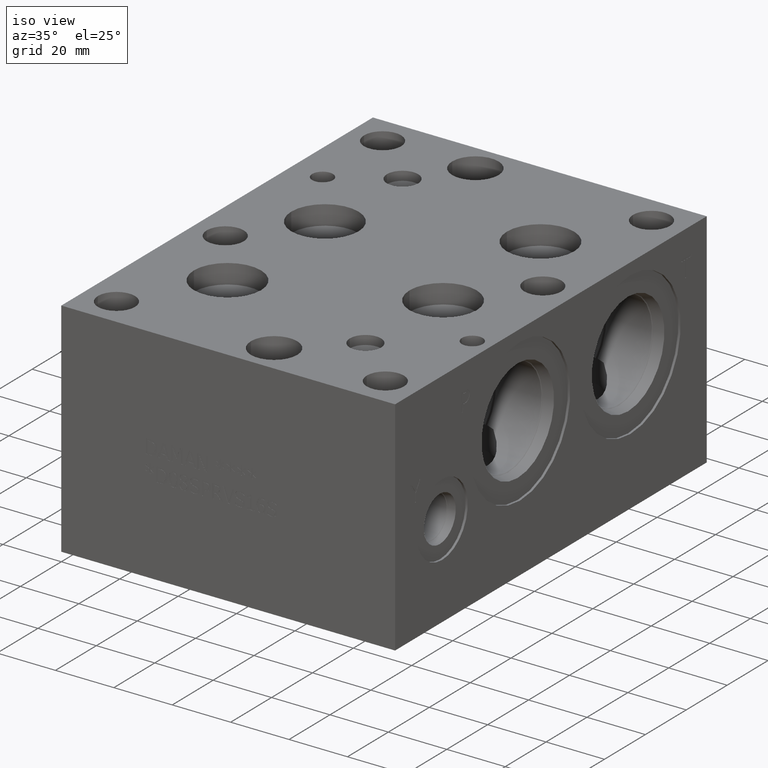
[diagram: clean part render]
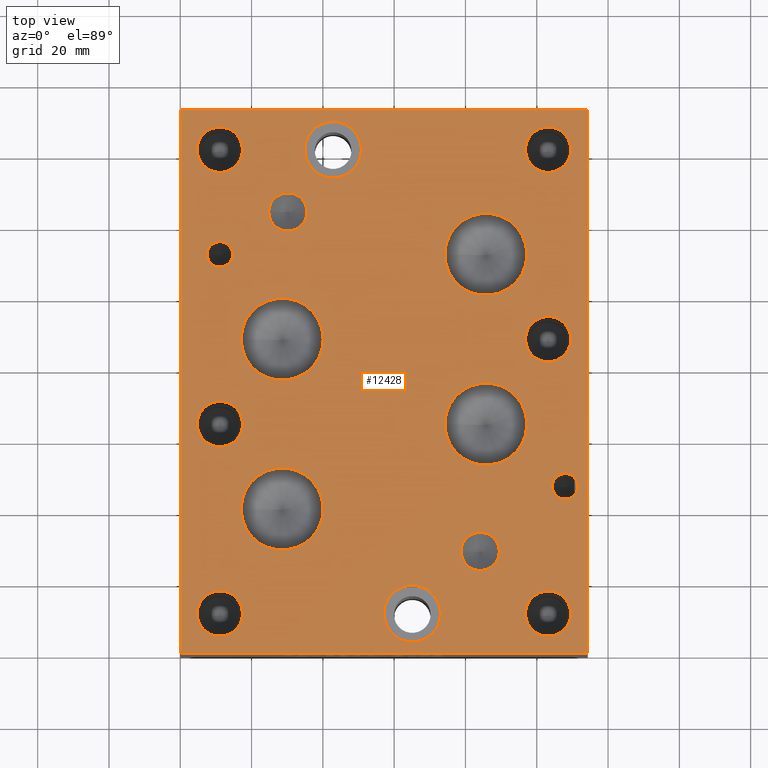
[diagram: tour spotlight — one face highlighted and labeled with its STEP entity id]
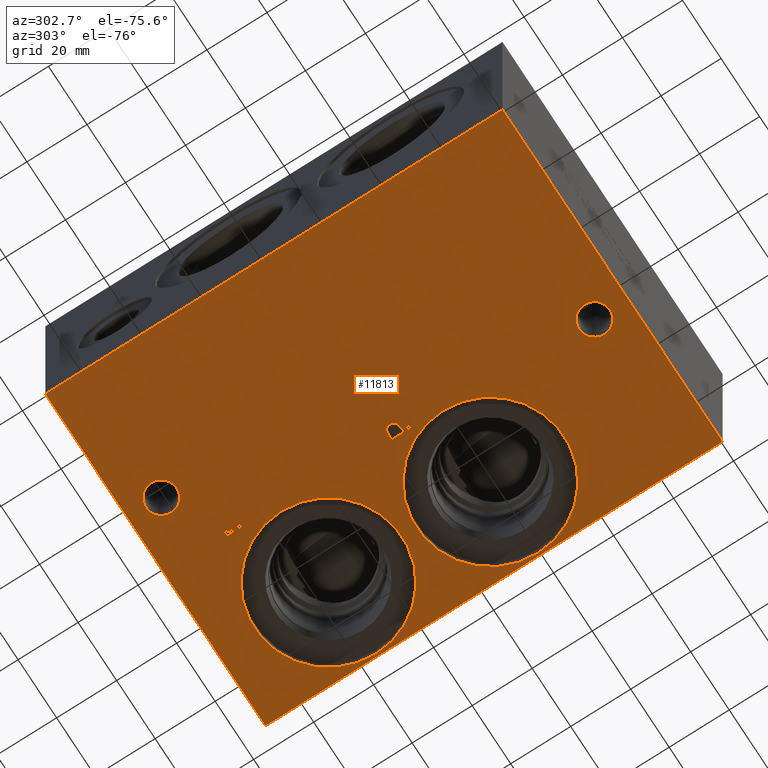
[diagram: tour spotlight — one face highlighted and labeled with its STEP entity id]
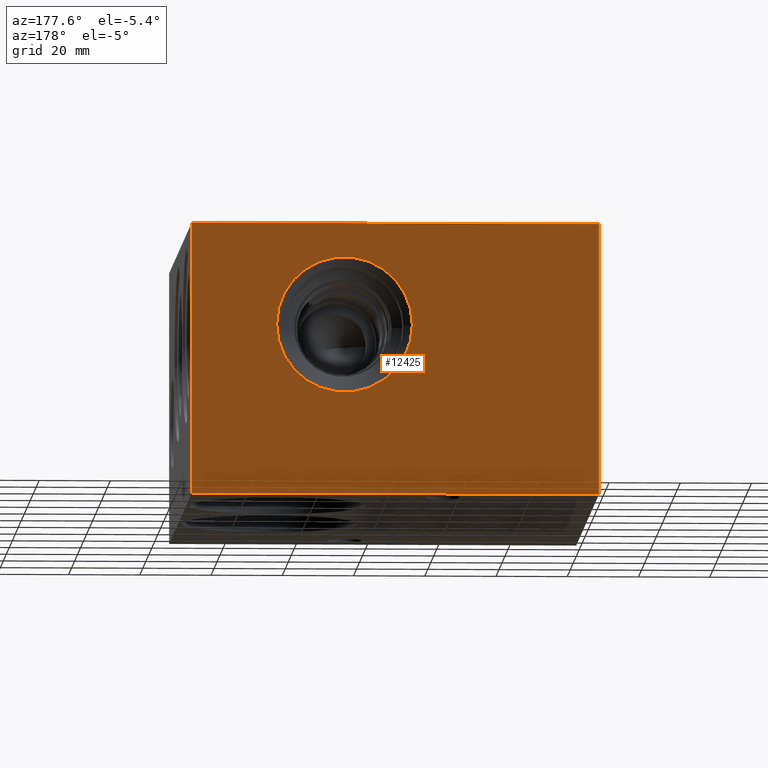
[diagram: tour spotlight — one face highlighted and labeled with its STEP entity id]
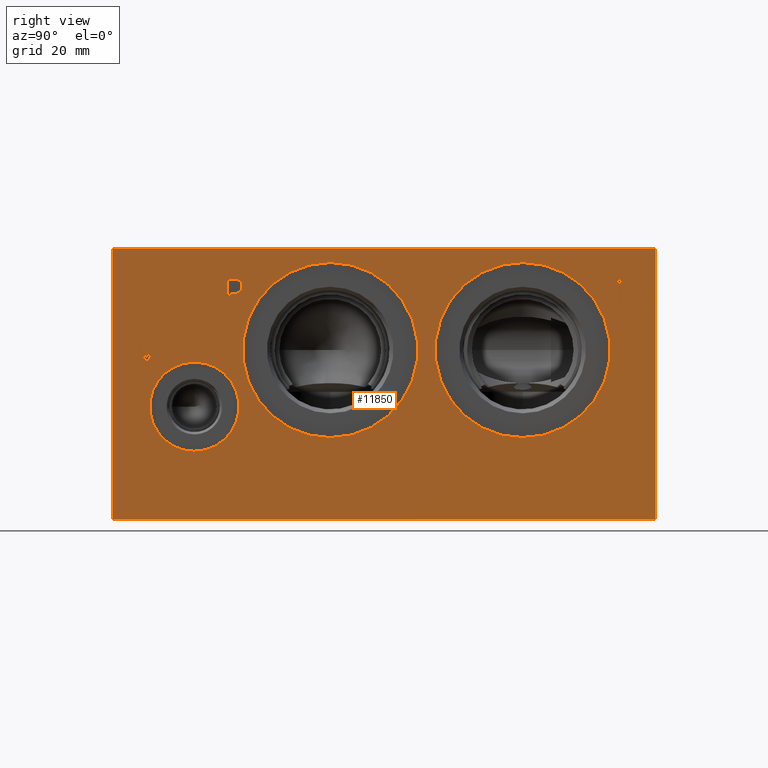
[diagram: tour spotlight — one face highlighted and labeled with its STEP entity id]
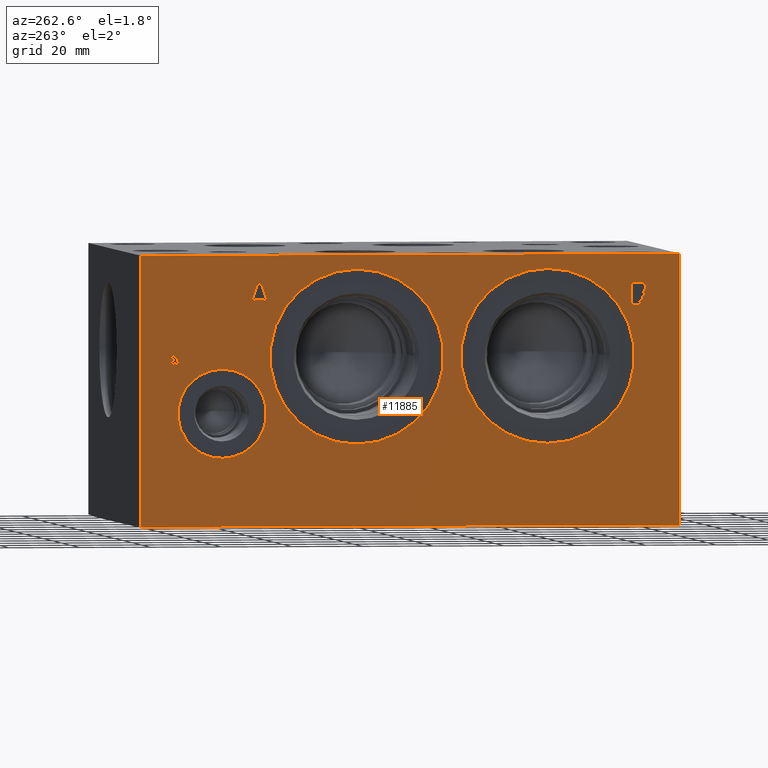
[diagram: tour spotlight — one face highlighted and labeled with its STEP entity id]
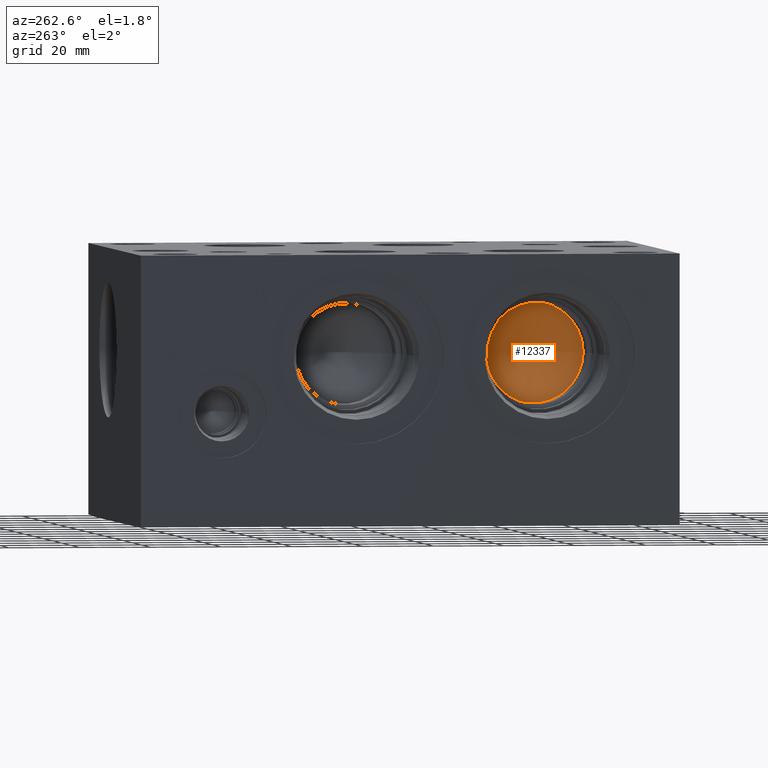
[diagram: tour spotlight — one face highlighted and labeled with its STEP entity id]
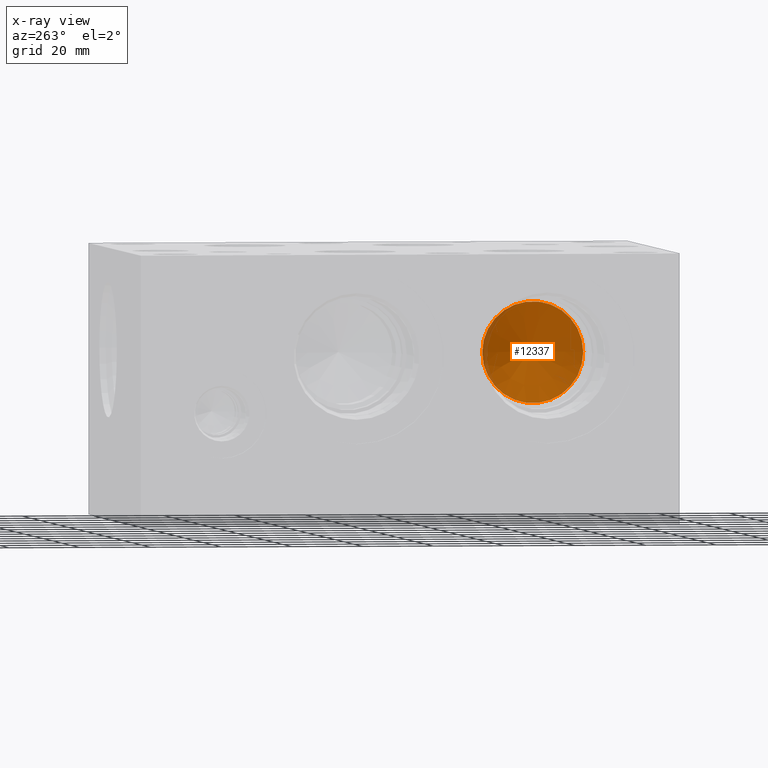
[diagram: x-ray of the same camera — body ghosted, this tour face saturated]
A machine part: a face-by-face anatomy tour. The part has 634 B-rep faces; the first image is the clean iso view, then the 6 largest visible faces are spotlighted one at a time (largest first), each with its STEP entity span.

Face 1 — top view, entity #12428. In plain terms, the highlighted planar face has unit normal (0, 0, 1).
Definition (entity closure, byte-faithful):
#338=CIRCLE('',#13062,7.9375);
#339=CIRCLE('',#13063,7.9375);
#343=CIRCLE('',#13070,7.9375);
#344=CIRCLE('',#13071,7.9375);
#347=CIRCLE('',#13077,5.3594);
#348=CIRCLE('',#13078,5.3594);
#351=CIRCLE('',#13083,5.3594);
#352=CIRCLE('',#13084,5.3594);
#355=CIRCLE('',#13089,11.5062);
#356=CIRCLE('',#13090,11.5062);
#359=CIRCLE('',#13095,11.5062);
#360=CIRCLE('',#13096,11.5062);
#363=CIRCLE('',#13101,11.5062);
#364=CIRCLE('',#13102,11.5062);
#367=CIRCLE('',#13107,11.5062);
#368=CIRCLE('',#13108,11.5062);
#371=CIRCLE('',#13113,3.5687);
#372=CIRCLE('',#13114,3.5687);
#375=CIRCLE('',#13119,3.5687);
#376=CIRCLE('',#13120,3.5687);
#382=CIRCLE('',#13129,6.35);
#383=CIRCLE('',#13130,6.35);
#389=CIRCLE('',#13140,6.35);
#390=CIRCLE('',#13141,6.35);
#396=CIRCLE('',#13151,6.35);
#397=CIRCLE('',#13152,6.35);
#403=CIRCLE('',#13162,6.35);
#404=CIRCLE('',#13163,6.35);
#410=CIRCLE('',#13173,6.35);
#411=CIRCLE('',#13174,6.35);
#417=CIRCLE('',#13184,6.35);
#418=CIRCLE('',#13185,6.35);
#500=FACE_BOUND('',#2214,.T.);
#501=FACE_BOUND('',#2215,.T.);
#502=FACE_BOUND('',#2216,.T.);
#503=FACE_BOUND('',#2217,.T.);
#504=FACE_BOUND('',#2218,.T.);
#505=FACE_BOUND('',#2219,.T.);
#506=FACE_BOUND('',#2220,.T.);
#507=FACE_BOUND('',#2221,.T.);
#508=FACE_BOUND('',#2222,.T.);
#509=FACE_BOUND('',#2223,.T.);
#510=FACE_BOUND('',#2224,.T.);
#511=FACE_BOUND('',#2225,.T.);
#512=FACE_BOUND('',#2226,.T.);
#513=FACE_BOUND('',#2227,.T.);
#514=FACE_BOUND('',#2228,.T.);
#515=FACE_BOUND('',#2229,.T.);
#864=PLANE('',#13191);
#1498=FACE_OUTER_BOUND('',#2213,.T.);
#2213=EDGE_LOOP('',(#11130,#11131,#11132,#11133));
#2214=EDGE_LOOP('',(#11134,#11135));
#2215=EDGE_LOOP('',(#11136,#11137));
#2216=EDGE_LOOP('',(#11138,#11139));
#2217=EDGE_LOOP('',(#11140,#11141));
#2218=EDGE_LOOP('',(#11142,#11143));
#2219=EDGE_LOOP('',(#11144,#11145));
#2220=EDGE_LOOP('',(#11146,#11147));
#2221=EDGE_LOOP('',(#11148,#11149));
#2222=EDGE_LOOP('',(#11150,#11151));
#2223=EDGE_LOOP('',(#11152,#11153));
#2224=EDGE_LOOP('',(#11154,#11155));
#2225=EDGE_LOOP('',(#11156,#11157));
#2226=EDGE_LOOP('',(#11158,#11159));
#2227=EDGE_LOOP('',(#11160,#11161));
#2228=EDGE_LOOP('',(#11162,#11163));
#2229=EDGE_LOOP('',(#11164,#11165));
#2351=LINE('',#16330,#3456);
#2422=LINE('',#16724,#3527);
#2843=LINE('',#19667,#3948);
#3335=LINE('',#21701,#4440);
#3456=VECTOR('',#13405,10.);
#3527=VECTOR('',#13530,10.);
#3948=VECTOR('',#14195,10.);
#4440=VECTOR('',#15789,10.);
#4896=VERTEX_POINT('',#16327);
#4897=VERTEX_POINT('',#16329);
#4968=VERTEX_POINT('',#16721);
#4969=VERTEX_POINT('',#16723);
#5879=VERTEX_POINT('',#21441);
#5880=VERTEX_POINT('',#21442);
#5884=VERTEX_POINT('',#21456);
#5885=VERTEX_POINT('',#21457);
#5889=VERTEX_POINT('',#21471);
#5890=VERTEX_POINT('',#21472);
#5894=VERTEX_POINT('',#21484);
#5895=VERTEX_POINT('',#21485);
#5899=VERTEX_POINT('',#21497);
#5900=VERTEX_POINT('',#21498);
#5904=VERTEX_POINT('',#21510);
#5905=VERTEX_POINT('',#21511);
#5909=VERTEX_POINT('',#21523);
#5910=VERTEX_POINT('',#21524);
#5914=VERTEX_POINT('',#21536);
#5915=VERTEX_POINT('',#21537);
#5919=VERTEX_POINT('',#21549);
#5920=VERTEX_POINT('',#21550);
#5924=VERTEX_POINT('',#21562);
#5925=VERTEX_POINT('',#21563);
#5932=VERTEX_POINT('',#21582);
#5933=VERTEX_POINT('',#21583);
#5940=VERTEX_POINT('',#21604);
#5941=VERTEX_POINT('',#21605);
#5948=VERTEX_POINT('',#21626);
#5949=VERTEX_POINT('',#21627);
#5956=VERTEX_POINT('',#21648);
#5957=VERTEX_POINT('',#21649);
#5964=VERTEX_POINT('',#21670);
#5965=VERTEX_POINT('',#21671);
#5972=VERTEX_POINT('',#21692);
#5973=VERTEX_POINT('',#21693);
#6132=EDGE_CURVE('',#4897,#4896,#2351,.T.);
#6237=EDGE_CURVE('',#4969,#4968,#2422,.T.);
#6908=EDGE_CURVE('',#4968,#4897,#2843,.T.);
#7587=EDGE_CURVE('',#5879,#5880,#338,.T.);
#7588=EDGE_CURVE('',#5880,#5879,#339,.T.);
#7594=EDGE_CURVE('',#5884,#5885,#343,.T.);
#7595=EDGE_CURVE('',#5885,#5884,#344,.T.);
#7601=EDGE_CURVE('',#5889,#5890,#347,.T.);
#7602=EDGE_CURVE('',#5890,#5889,#348,.T.);
#7607=EDGE_CURVE('',#5894,#5895,#351,.T.);
#7608=EDGE_CURVE('',#5895,#5894,#352,.T.);
#7613=EDGE_CURVE('',#5899,#5900,#355,.T.);
#7614=EDGE_CURVE('',#5900,#5899,#356,.T.);
#7619=EDGE_CURVE('',#5904,#5905,#359,.T.);
#7620=EDGE_CURVE('',#5905,#5904,#360,.T.);
#7625=EDGE_CURVE('',#5909,#5910,#363,.T.);
#7626=EDGE_CURVE('',#5910,#5909,#364,.T.);
#7631=EDGE_CURVE('',#5914,#5915,#367,.T.);
#7632=EDGE_CURVE('',#5915,#5914,#368,.T.);
#7637=EDGE_CURVE('',#5919,#5920,#371,.T.);
#7638=EDGE_CURVE('',#5920,#5919,#372,.T.);
#7643=EDGE_CURVE('',#5924,#5925,#375,.T.);
#7644=EDGE_CURVE('',#5925,#5924,#376,.T.);
#7652=EDGE_CURVE('',#5932,#5933,#382,.T.);
#7653=EDGE_CURVE('',#5933,#5932,#383,.T.);
#7662=EDGE_CURVE('',#5940,#5941,#389,.T.);
#7663=EDGE_CURVE('',#5941,#5940,#390,.T.);
#7672=EDGE_CURVE('',#5948,#5949,#396,.T.);
#7673=EDGE_CURVE('',#5949,#5948,#397,.T.);
#7682=EDGE_CURVE('',#5956,#5957,#403,.T.);
#7683=EDGE_CURVE('',#5957,#5956,#404,.T.);
#7692=EDGE_CURVE('',#5964,#5965,#410,.T.);
#7693=EDGE_CURVE('',#5965,#5964,#411,.T.);
#7702=EDGE_CURVE('',#5972,#5973,#417,.T.);
#7703=EDGE_CURVE('',#5973,#5972,#418,.T.);
#7706=EDGE_CURVE('',#4896,#4969,#3335,.T.);
#11130=ORIENTED_EDGE('',*,*,#6908,.T.);
#11131=ORIENTED_EDGE('',*,*,#6132,.T.);
#11132=ORIENTED_EDGE('',*,*,#7706,.T.);
#11133=ORIENTED_EDGE('',*,*,#6237,.T.);
#11134=ORIENTED_EDGE('',*,*,#7587,.T.);
#11135=ORIENTED_EDGE('',*,*,#7588,.T.);
#11136=ORIENTED_EDGE('',*,*,#7594,.T.);
#11137=ORIENTED_EDGE('',*,*,#7595,.T.);
#11138=ORIENTED_EDGE('',*,*,#7601,.T.);
#11139=ORIENTED_EDGE('',*,*,#7602,.T.);
#11140=ORIENTED_EDGE('',*,*,#7607,.T.);
#11141=ORIENTED_EDGE('',*,*,#7608,.T.);
#11142=ORIENTED_EDGE('',*,*,#7613,.T.);
#11143=ORIENTED_EDGE('',*,*,#7614,.T.);
#11144=ORIENTED_EDGE('',*,*,#7619,.T.);
#11145=ORIENTED_EDGE('',*,*,#7620,.T.);
#11146=ORIENTED_EDGE('',*,*,#7625,.T.);
#11147=ORIENTED_EDGE('',*,*,#7626,.T.);
#11148=ORIENTED_EDGE('',*,*,#7631,.T.);
#11149=ORIENTED_EDGE('',*,*,#7632,.T.);
#11150=ORIENTED_EDGE('',*,*,#7637,.T.);
#11151=ORIENTED_EDGE('',*,*,#7638,.T.);
#11152=ORIENTED_EDGE('',*,*,#7643,.T.);
#11153=ORIENTED_EDGE('',*,*,#7644,.T.);
#11154=ORIENTED_EDGE('',*,*,#7652,.T.);
#11155=ORIENTED_EDGE('',*,*,#7653,.T.);
#11156=ORIENTED_EDGE('',*,*,#7662,.T.);
#11157=ORIENTED_EDGE('',*,*,#7663,.T.);
#11158=ORIENTED_EDGE('',*,*,#7672,.T.);
#11159=ORIENTED_EDGE('',*,*,#7673,.T.);
#11160=ORIENTED_EDGE('',*,*,#7682,.T.);
#11161=ORIENTED_EDGE('',*,*,#7683,.T.);
#11162=ORIENTED_EDGE('',*,*,#7692,.T.);
#11163=ORIENTED_EDGE('',*,*,#7693,.T.);
#11164=ORIENTED_EDGE('',*,*,#7702,.T.);
#11165=ORIENTED_EDGE('',*,*,#7703,.T.);
#12428=ADVANCED_FACE('',(#1498,#500,#501,#502,#503,#504,#505,#506,#507,
#508,#509,#510,#511,#512,#513,#514,#515),#864,.T.);
#13062=AXIS2_PLACEMENT_3D('',#21443,#15497,#15498);
#13063=AXIS2_PLACEMENT_3D('',#21444,#15499,#15500);
#13070=AXIS2_PLACEMENT_3D('',#21458,#15515,#15516);
#13071=AXIS2_PLACEMENT_3D('',#21459,#15517,#15518);
#13077=AXIS2_PLACEMENT_3D('',#21473,#15532,#15533);
#13078=AXIS2_PLACEMENT_3D('',#21474,#15534,#15535);
#13083=AXIS2_PLACEMENT_3D('',#21486,#15546,#15547);
#13084=AXIS2_PLACEMENT_3D('',#21487,#15548,#15549);
#13089=AXIS2_PLACEMENT_3D('',#21499,#15560,#15561);
#13090=AXIS2_PLACEMENT_3D('',#21500,#15562,#15563);
#13095=AXIS2_PLACEMENT_3D('',#21512,#15574,#15575);
#13096=AXIS2_PLACEMENT_3D('',#21513,#15576,#15577);
#13101=AXIS2_PLACEMENT_3D('',#21525,#15588,#15589);
#13102=AXIS2_PLACEMENT_3D('',#21526,#15590,#15591);
#13107=AXIS2_PLACEMENT_3D('',#21538,#15602,#15603);
#13108=AXIS2_PLACEMENT_3D('',#21539,#15604,#15605);
#13113=AXIS2_PLACEMENT_3D('',#21551,#15616,#15617);
#13114=AXIS2_PLACEMENT_3D('',#21552,#15618,#15619);
#13119=AXIS2_PLACEMENT_3D('',#21564,#15630,#15631);
#13120=AXIS2_PLACEMENT_3D('',#21565,#15632,#15633);
#13129=AXIS2_PLACEMENT_3D('',#21584,#15652,#15653);
#13130=AXIS2_PLACEMENT_3D('',#21585,#15654,#15655);
#13140=AXIS2_PLACEMENT_3D('',#21606,#15677,#15678);
#13141=AXIS2_PLACEMENT_3D('',#21607,#15679,#15680);
#13151=AXIS2_PLACEMENT_3D('',#21628,#15702,#15703);
#13152=AXIS2_PLACEMENT_3D('',#21629,#15704,#15705);
#13162=AXIS2_PLACEMENT_3D('',#21650,#15727,#15728);
#13163=AXIS2_PLACEMENT_3D('',#21651,#15729,#15730);
#13173=AXIS2_PLACEMENT_3D('',#21672,#15752,#15753);
#13174=AXIS2_PLACEMENT_3D('',#21673,#15754,#15755);
#13184=AXIS2_PLACEMENT_3D('',#21694,#15777,#15778);
#13185=AXIS2_PLACEMENT_3D('',#21695,#15779,#15780);
#13191=AXIS2_PLACEMENT_3D('',#21704,#15794,#15795);
#13405=DIRECTION('',(0.,1.,0.));
#13530=DIRECTION('',(0.,-1.,0.));
#14195=DIRECTION('',(1.,0.,0.));
#15497=DIRECTION('center_axis',(0.,0.,-1.));
#15498=DIRECTION('ref_axis',(1.,0.,0.));
#15499=DIRECTION('center_axis',(0.,0.,-1.));
#15500=DIRECTION('ref_axis',(1.,0.,0.));
#15515=DIRECTION('center_axis',(0.,0.,-1.));
#15516=DIRECTION('ref_axis',(1.,0.,0.));
#15517=DIRECTION('center_axis',(0.,0.,-1.));
#15518=DIRECTION('ref_axis',(1.,0.,0.));
#15532=DIRECTION('center_axis',(0.,0.,-1.));
#15533=DIRECTION('ref_axis',(1.,0.,0.));
#15534=DIRECTION('center_axis',(0.,0.,-1.));
#15535=DIRECTION('ref_axis',(1.,0.,0.));
#15546=DIRECTION('center_axis',(0.,0.,-1.));
#15547=DIRECTION('ref_axis',(1.,0.,0.));
#15548=DIRECTION('center_axis',(0.,0.,-1.));
#15549=DIRECTION('ref_axis',(1.,0.,0.));
#15560=DIRECTION('center_axis',(0.,0.,-1.));
#15561=DIRECTION('ref_axis',(1.,0.,0.));
#15562=DIRECTION('center_axis',(0.,0.,-1.));
#15563=DIRECTION('ref_axis',(1.,0.,0.));
#15574=DIRECTION('center_axis',(0.,0.,-1.));
#15575=DIRECTION('ref_axis',(1.,0.,0.));
#15576=DIRECTION('center_axis',(0.,0.,-1.));
#15577=DIRECTION('ref_axis',(1.,0.,0.));
#15588=DIRECTION('center_axis',(0.,0.,-1.));
#15589=DIRECTION('ref_axis',(1.,0.,0.));
#15590=DIRECTION('center_axis',(0.,0.,-1.));
#15591=DIRECTION('ref_axis',(1.,0.,0.));
#15602=DIRECTION('center_axis',(0.,0.,-1.));
#15603=DIRECTION('ref_axis',(1.,0.,0.));
#15604=DIRECTION('center_axis',(0.,0.,-1.));
#15605=DIRECTION('ref_axis',(1.,0.,0.));
#15616=DIRECTION('center_axis',(0.,0.,-1.));
#15617=DIRECTION('ref_axis',(1.,0.,0.));
#15618=DIRECTION('center_axis',(0.,0.,-1.));
#15619=DIRECTION('ref_axis',(1.,0.,0.));
#15630=DIRECTION('center_axis',(0.,0.,-1.));
#15631=DIRECTION('ref_axis',(1.,0.,0.));
#15632=DIRECTION('center_axis',(0.,0.,-1.));
#15633=DIRECTION('ref_axis',(1.,0.,0.));
#15652=DIRECTION('center_axis',(0.,0.,-1.));
#15653=DIRECTION('ref_axis',(1.,0.,0.));
#15654=DIRECTION('center_axis',(0.,0.,-1.));
#15655=DIRECTION('ref_axis',(1.,0.,0.));
#15677=DIRECTION('center_axis',(0.,0.,-1.));
#15678=DIRECTION('ref_axis',(1.,0.,0.));
#15679=DIRECTION('center_axis',(0.,0.,-1.));
#15680=DIRECTION('ref_axis',(1.,0.,0.));
#15702=DIRECTION('center_axis',(0.,0.,-1.));
#15703=DIRECTION('ref_axis',(1.,0.,0.));
#15704=DIRECTION('center_axis',(0.,0.,-1.));
#15705=DIRECTION('ref_axis',(1.,0.,0.));
#15727=DIRECTION('center_axis',(0.,0.,-1.));
#15728=DIRECTION('ref_axis',(1.,0.,0.));
#15729=DIRECTION('center_axis',(0.,0.,-1.));
#15730=DIRECTION('ref_axis',(1.,0.,0.));
#15752=DIRECTION('center_axis',(0.,0.,-1.));
#15753=DIRECTION('ref_axis',(1.,0.,0.));
#15754=DIRECTION('center_axis',(0.,0.,-1.));
#15755=DIRECTION('ref_axis',(1.,0.,0.));
#15777=DIRECTION('center_axis',(0.,0.,-1.));
#15778=DIRECTION('ref_axis',(1.,0.,0.));
#15779=DIRECTION('center_axis',(0.,0.,-1.));
#15780=DIRECTION('ref_axis',(1.,0.,0.));
#15789=DIRECTION('',(-1.,0.,0.));
#15794=DIRECTION('center_axis',(0.,0.,1.));
#15795=DIRECTION('ref_axis',(1.,0.,0.));
#16327=CARTESIAN_POINT('',(114.3,152.4,76.2));
#16329=CARTESIAN_POINT('',(114.3,0.,76.2));
#16330=CARTESIAN_POINT('',(114.3,0.,76.2));
#16721=CARTESIAN_POINT('',(0.,0.,76.2));
#16723=CARTESIAN_POINT('',(0.,152.4,76.2));
#16724=CARTESIAN_POINT('',(0.,152.4,76.2));
#19667=CARTESIAN_POINT('',(0.,0.,76.2));
#21441=CARTESIAN_POINT('',(50.8127,141.2748,76.2));
#21442=CARTESIAN_POINT('',(34.9377,141.2748,76.2));
#21443=CARTESIAN_POINT('Origin',(42.8752,141.2748,76.2));
#21444=CARTESIAN_POINT('Origin',(42.8752,141.2748,76.2));
#21456=CARTESIAN_POINT('',(73.0123,11.1252,76.2));
#21457=CARTESIAN_POINT('',(57.1373,11.1252,76.2));
#21458=CARTESIAN_POINT('Origin',(65.0748,11.1252,76.2));
#21459=CARTESIAN_POINT('Origin',(65.0748,11.1252,76.2));
#21471=CARTESIAN_POINT('',(35.5219,123.81992,76.2));
#21472=CARTESIAN_POINT('',(24.8031,123.81992,76.2));
#21473=CARTESIAN_POINT('Origin',(30.1625,123.81992,76.2));
#21474=CARTESIAN_POINT('Origin',(30.1625,123.81992,76.2));
#21484=CARTESIAN_POINT('',(89.4969,28.56992,76.2));
#21485=CARTESIAN_POINT('',(78.7781,28.56992,76.2));
#21486=CARTESIAN_POINT('Origin',(84.1375,28.56992,76.2));
#21487=CARTESIAN_POINT('Origin',(84.1375,28.56992,76.2));
#21497=CARTESIAN_POINT('',(40.0812,88.1126,76.2));
#21498=CARTESIAN_POINT('',(17.0688,88.1126,76.2));
#21499=CARTESIAN_POINT('Origin',(28.575,88.1126,76.2));
#21500=CARTESIAN_POINT('Origin',(28.575,88.1126,76.2));
#21510=CARTESIAN_POINT('',(97.2312,64.2874,76.2));
#21511=CARTESIAN_POINT('',(74.2188,64.2874,76.2));
#21512=CARTESIAN_POINT('Origin',(85.725,64.2874,76.2));
#21513=CARTESIAN_POINT('Origin',(85.725,64.2874,76.2));
#21523=CARTESIAN_POINT('',(97.2312,111.9124,76.2));
#21524=CARTESIAN_POINT('',(74.2188,111.9124,76.2));
#21525=CARTESIAN_POINT('Origin',(85.725,111.9124,76.2));
#21526=CARTESIAN_POINT('Origin',(85.725,111.9124,76.2));
#21536=CARTESIAN_POINT('',(40.0812,40.4622,76.2));
#21537=CARTESIAN_POINT('',(17.0688,40.4622,76.2));
#21538=CARTESIAN_POINT('Origin',(28.575,40.4622,76.2));
#21539=CARTESIAN_POINT('Origin',(28.575,40.4622,76.2));
#21549=CARTESIAN_POINT('',(14.6685,111.9124,76.2));
#21550=CARTESIAN_POINT('',(7.5311,111.9124,76.2));
#21551=CARTESIAN_POINT('Origin',(11.0998,111.9124,76.2));
#21552=CARTESIAN_POINT('Origin',(11.0998,111.9124,76.2));
#21562=CARTESIAN_POINT('',(111.5187,46.8376,76.2));
#21563=CARTESIAN_POINT('',(104.3813,46.8376,76.2));
#21564=CARTESIAN_POINT('Origin',(107.95,46.8376,76.2));
#21565=CARTESIAN_POINT('Origin',(107.95,46.8376,76.2));
#21582=CARTESIAN_POINT('',(17.4625,11.10742,76.2));
#21583=CARTESIAN_POINT('',(4.7625,11.10742,76.2));
#21584=CARTESIAN_POINT('Origin',(11.1125,11.10742,76.2));
#21585=CARTESIAN_POINT('Origin',(11.1125,11.10742,76.2));
#21604=CARTESIAN_POINT('',(109.5502,88.0999,76.2));
#21605=CARTESIAN_POINT('',(96.8502,88.0999,76.2));
#21606=CARTESIAN_POINT('Origin',(103.2002,88.0999,76.2));
#21607=CARTESIAN_POINT('Origin',(103.2002,88.0999,76.2));
#21626=CARTESIAN_POINT('',(17.4498,141.2748,76.2));
#21627=CARTESIAN_POINT('',(4.7498,141.2748,76.2));
#21628=CARTESIAN_POINT('Origin',(11.0998,141.2748,76.2));
#21629=CARTESIAN_POINT('Origin',(11.0998,141.2748,76.2));
#21648=CARTESIAN_POINT('',(109.5375,141.27988,76.2));
#21649=CARTESIAN_POINT('',(96.8375,141.27988,76.2));
#21650=CARTESIAN_POINT('Origin',(103.1875,141.27988,76.2));
#21651=CARTESIAN_POINT('Origin',(103.1875,141.27988,76.2));
#21670=CARTESIAN_POINT('',(109.5375,11.10742,76.2));
#21671=CARTESIAN_POINT('',(96.8375,11.10742,76.2));
#21672=CARTESIAN_POINT('Origin',(103.1875,11.10742,76.2));
#21673=CARTESIAN_POINT('Origin',(103.1875,11.10742,76.2));
#21692=CARTESIAN_POINT('',(17.4752,64.2874,76.2));
#21693=CARTESIAN_POINT('',(4.7752,64.2874,76.2));
#21694=CARTESIAN_POINT('Origin',(11.1252,64.2874,76.2));
#21695=CARTESIAN_POINT('Origin',(11.1252,64.2874,76.2));
#21701=CARTESIAN_POINT('',(114.3,152.4,76.2));
#21704=CARTESIAN_POINT('Origin',(57.15,76.2,76.2));

Face 2 — auxiliary view, entity #11813. In plain terms, the highlighted planar face has unit normal (0, 0, 1).
Definition (entity closure, byte-faithful):
#144=CIRCLE('',#12454,5.1562);
#145=CIRCLE('',#12455,5.1562);
#146=CIRCLE('',#12456,24.5618);
#147=CIRCLE('',#12457,24.5618);
#148=CIRCLE('',#12458,24.5618);
#149=CIRCLE('',#12459,24.5618);
#420=FACE_BOUND('',#1519,.T.);
#421=FACE_BOUND('',#1520,.T.);
#422=FACE_BOUND('',#1521,.T.);
#423=FACE_BOUND('',#1522,.T.);
#424=FACE_BOUND('',#1523,.T.);
#425=FACE_BOUND('',#1524,.T.);
#525=PLANE('',#12453);
#883=FACE_OUTER_BOUND('',#1518,.T.);
#1518=EDGE_LOOP('',(#7787,#7788,#7789,#7790));
#1519=EDGE_LOOP('',(#7791));
#1520=EDGE_LOOP('',(#7792));
#1521=EDGE_LOOP('',(#7793,#7794));
#1522=EDGE_LOOP('',(#7795,#7796));
#1523=EDGE_LOOP('',(#7797,#7798,#7799,#7800,#7801,#7802,#7803,#7804));
#1524=EDGE_LOOP('',(#7805,#7806,#7807,#7808,#7809,#7810,#7811,#7812,#7813));
#2247=LINE('',#15936,#3352);
#2250=LINE('',#15942,#3355);
#2253=LINE('',#15948,#3358);
#2256=LINE('',#15954,#3361);
#2259=LINE('',#15960,#3364);
#2263=LINE('',#16003,#3368);
#2264=LINE('',#16005,#3369);
#2265=LINE('',#16007,#3370);
#2266=LINE('',#16008,#3371);
#2267=LINE('',#16023,#3372);
#2268=LINE('',#16025,#3373);
#2269=LINE('',#16027,#3374);
#2270=LINE('',#16029,#3375);
#2271=LINE('',#16031,#3376);
#2272=LINE('',#16033,#3377);
#2273=LINE('',#16035,#3378);
#2274=LINE('',#16036,#3379);
#3352=VECTOR('',#13219,10.);
#3355=VECTOR('',#13224,10.);
#3358=VECTOR('',#13229,10.);
#3361=VECTOR('',#13234,10.);
#3364=VECTOR('',#13239,10.);
#3368=VECTOR('',#13247,10.);
#3369=VECTOR('',#13248,10.);
#3370=VECTOR('',#13249,10.);
#3371=VECTOR('',#13250,10.);
#3372=VECTOR('',#13263,10.);
#3373=VECTOR('',#13264,10.);
#3374=VECTOR('',#13265,10.);
#3375=VECTOR('',#13266,10.);
#3376=VECTOR('',#13267,10.);
#3377=VECTOR('',#13268,10.);
#3378=VECTOR('',#13269,10.);
#3379=VECTOR('',#13270,10.);
#4449=B_SPLINE_CURVE_WITH_KNOTS('',2,(#15903,#15904,#15905,#15906),
 .UNSPECIFIED.,.F.,.F.,(3,1,3),(0.,1.,2.),.UNSPECIFIED.);
#4451=B_SPLINE_CURVE_WITH_KNOTS('',2,(#15924,#15925,#15926,#15927),
 .UNSPECIFIED.,.F.,.F.,(3,1,3),(0.,1.,2.),.UNSPECIFIED.);
#4453=B_SPLINE_CURVE_WITH_KNOTS('',2,(#15973,#15974,#15975,#15976),
 .UNSPECIFIED.,.F.,.F.,(3,1,3),(0.,1.,2.),.UNSPECIFIED.);
#4455=B_SPLINE_CURVE_WITH_KNOTS('',2,(#15991,#15992,#15993,#15994),
 .UNSPECIFIED.,.F.,.F.,(3,1,3),(0.,1.,2.),.UNSPECIFIED.);
#4802=VERTEX_POINT('',#15901);
#4803=VERTEX_POINT('',#15902);
#4806=VERTEX_POINT('',#15923);
#4808=VERTEX_POINT('',#15935);
#4810=VERTEX_POINT('',#15941);
#4812=VERTEX_POINT('',#15947);
#4814=VERTEX_POINT('',#15953);
#4816=VERTEX_POINT('',#15959);
#4818=VERTEX_POINT('',#15972);
#4820=VERTEX_POINT('',#16001);
#4821=VERTEX_POINT('',#16002);
#4822=VERTEX_POINT('',#16004);
#4823=VERTEX_POINT('',#16006);
#4824=VERTEX_POINT('',#16009);
#4825=VERTEX_POINT('',#16011);
#4826=VERTEX_POINT('',#16013);
#4827=VERTEX_POINT('',#16014);
#4828=VERTEX_POINT('',#16017);
#4829=VERTEX_POINT('',#16018);
#4830=VERTEX_POINT('',#16021);
#4831=VERTEX_POINT('',#16022);
#4832=VERTEX_POINT('',#16024);
#4833=VERTEX_POINT('',#16026);
#4834=VERTEX_POINT('',#16028);
#4835=VERTEX_POINT('',#16030);
#4836=VERTEX_POINT('',#16032);
#4837=VERTEX_POINT('',#16034);
#5995=EDGE_CURVE('',#4802,#4803,#4449,.T.);
#5999=EDGE_CURVE('',#4806,#4802,#4451,.T.);
#6002=EDGE_CURVE('',#4808,#4806,#2247,.T.);
#6005=EDGE_CURVE('',#4810,#4808,#2250,.T.);
#6008=EDGE_CURVE('',#4812,#4810,#2253,.T.);
#6011=EDGE_CURVE('',#4814,#4812,#2256,.T.);
#6014=EDGE_CURVE('',#4816,#4814,#2259,.T.);
#6017=EDGE_CURVE('',#4818,#4816,#4453,.T.);
#6020=EDGE_CURVE('',#4803,#4818,#4455,.T.);
#6022=EDGE_CURVE('',#4820,#4821,#2263,.T.);
#6023=EDGE_CURVE('',#4822,#4820,#2264,.T.);
#6024=EDGE_CURVE('',#4823,#4822,#2265,.T.);
#6025=EDGE_CURVE('',#4821,#4823,#2266,.T.);
#6026=EDGE_CURVE('',#4824,#4824,#144,.T.);
#6027=EDGE_CURVE('',#4825,#4825,#145,.T.);
#6028=EDGE_CURVE('',#4826,#4827,#146,.T.);
#6029=EDGE_CURVE('',#4827,#4826,#147,.T.);
#6030=EDGE_CURVE('',#4828,#4829,#148,.T.);
#6031=EDGE_CURVE('',#4829,#4828,#149,.T.);
#6032=EDGE_CURVE('',#4830,#4831,#2267,.T.);
#6033=EDGE_CURVE('',#4831,#4832,#2268,.T.);
#6034=EDGE_CURVE('',#4832,#4833,#2269,.T.);
#6035=EDGE_CURVE('',#4833,#4834,#2270,.T.);
#6036=EDGE_CURVE('',#4834,#4835,#2271,.T.);
#6037=EDGE_CURVE('',#4835,#4836,#2272,.T.);
#6038=EDGE_CURVE('',#4836,#4837,#2273,.T.);
#6039=EDGE_CURVE('',#4837,#4830,#2274,.T.);
#7787=ORIENTED_EDGE('',*,*,#6022,.F.);
#7788=ORIENTED_EDGE('',*,*,#6023,.F.);
#7789=ORIENTED_EDGE('',*,*,#6024,.F.);
#7790=ORIENTED_EDGE('',*,*,#6025,.F.);
#7791=ORIENTED_EDGE('',*,*,#6026,.T.);
#7792=ORIENTED_EDGE('',*,*,#6027,.T.);
#7793=ORIENTED_EDGE('',*,*,#6028,.T.);
#7794=ORIENTED_EDGE('',*,*,#6029,.T.);
#7795=ORIENTED_EDGE('',*,*,#6030,.T.);
#7796=ORIENTED_EDGE('',*,*,#6031,.T.);
#7797=ORIENTED_EDGE('',*,*,#6032,.T.);
#7798=ORIENTED_EDGE('',*,*,#6033,.T.);
#7799=ORIENTED_EDGE('',*,*,#6034,.T.);
#7800=ORIENTED_EDGE('',*,*,#6035,.T.);
#7801=ORIENTED_EDGE('',*,*,#6036,.T.);
#7802=ORIENTED_EDGE('',*,*,#6037,.T.);
#7803=ORIENTED_EDGE('',*,*,#6038,.T.);
#7804=ORIENTED_EDGE('',*,*,#6039,.T.);
#7805=ORIENTED_EDGE('',*,*,#5995,.T.);
#7806=ORIENTED_EDGE('',*,*,#6020,.T.);
#7807=ORIENTED_EDGE('',*,*,#6017,.T.);
#7808=ORIENTED_EDGE('',*,*,#6014,.T.);
#7809=ORIENTED_EDGE('',*,*,#6011,.T.);
#7810=ORIENTED_EDGE('',*,*,#6008,.T.);
#7811=ORIENTED_EDGE('',*,*,#6005,.T.);
#7812=ORIENTED_EDGE('',*,*,#6002,.T.);
#7813=ORIENTED_EDGE('',*,*,#5999,.T.);
#11813=ADVANCED_FACE('',(#883,#420,#421,#422,#423,#424,#425),#525,.F.);
#12453=AXIS2_PLACEMENT_3D('',#16000,#13245,#13246);
#12454=AXIS2_PLACEMENT_3D('',#16010,#13251,#13252);
#12455=AXIS2_PLACEMENT_3D('',#16012,#13253,#13254);
#12456=AXIS2_PLACEMENT_3D('',#16015,#13255,#13256);
#12457=AXIS2_PLACEMENT_3D('',#16016,#13257,#13258);
#12458=AXIS2_PLACEMENT_3D('',#16019,#13259,#13260);
#12459=AXIS2_PLACEMENT_3D('',#16020,#13261,#13262);
#13219=DIRECTION('',(-1.,0.,0.));
#13224=DIRECTION('',(-4.19611858128769E-15,1.,0.));
#13229=DIRECTION('',(1.,0.,0.));
#13234=DIRECTION('',(3.75218139805001E-15,-1.,0.));
#13239=DIRECTION('',(1.,0.,0.));
#13245=DIRECTION('center_axis',(0.,0.,1.));
#13246=DIRECTION('ref_axis',(1.,0.,0.));
#13247=DIRECTION('',(1.,0.,0.));
#13248=DIRECTION('',(0.,-1.,0.));
#13249=DIRECTION('',(-1.,0.,0.));
#13250=DIRECTION('',(0.,1.,0.));
#13251=DIRECTION('center_axis',(0.,0.,1.));
#13252=DIRECTION('ref_axis',(1.,0.,0.));
#13253=DIRECTION('center_axis',(0.,0.,1.));
#13254=DIRECTION('ref_axis',(1.,0.,0.));
#13255=DIRECTION('center_axis',(0.,0.,1.));
#13256=DIRECTION('ref_axis',(1.,0.,0.));
#13257=DIRECTION('center_axis',(0.,0.,1.));
#13258=DIRECTION('ref_axis',(1.,0.,0.));
#13259=DIRECTION('center_axis',(0.,0.,1.));
#13260=DIRECTION('ref_axis',(1.,0.,0.));
#13261=DIRECTION('center_axis',(0.,0.,1.));
#13262=DIRECTION('ref_axis',(1.,0.,0.));
#13263=DIRECTION('',(1.,0.,0.));
#13264=DIRECTION('',(-3.17280044688051E-15,1.,0.));
#13265=DIRECTION('',(1.,0.,0.));
#13266=DIRECTION('',(0.,1.,0.));
#13267=DIRECTION('',(-1.,-3.47984565141734E-15,0.));
#13268=DIRECTION('',(0.,-1.,0.));
#13269=DIRECTION('',(1.,8.33818088455555E-15,0.));
#13270=DIRECTION('',(3.17280044688051E-15,-1.,0.));
#15901=CARTESIAN_POINT('',(60.3931827976406,77.3912681439707,0.));
#15902=CARTESIAN_POINT('',(59.636740345468,75.8732373726039,0.));
#15903=CARTESIAN_POINT('Ctrl Pts',(60.3931827976406,77.3912681439707,0.));
#15904=CARTESIAN_POINT('Ctrl Pts',(60.0381179731514,77.1494123939564,0.));
#15905=CARTESIAN_POINT('Ctrl Pts',(59.636740345468,76.4032616758269,0.));
#15906=CARTESIAN_POINT('Ctrl Pts',(59.636740345468,75.8732373726039,0.));
#15923=CARTESIAN_POINT('',(62.0552978456117,77.7874999046326,0.));
#15924=CARTESIAN_POINT('Ctrl Pts',(62.0552978456117,77.7874999046326,0.));
#15925=CARTESIAN_POINT('Ctrl Pts',(61.4892524732376,77.7874999046326,0.));
#15926=CARTESIAN_POINT('Ctrl Pts',(60.696788951914,77.6022486918556,0.));
#15927=CARTESIAN_POINT('Ctrl Pts',(60.3931827976406,77.3912681439707,0.));
#15935=CARTESIAN_POINT('',(63.6505166223022,77.7874999046326,0.));
#15936=CARTESIAN_POINT('',(60.4002583111511,77.7874999046326,0.));
#15941=CARTESIAN_POINT('',(63.6505166223022,71.4375,0.));
#15942=CARTESIAN_POINT('',(63.6505166223022,73.81875,0.));
#15947=CARTESIAN_POINT('',(62.8065944307627,71.4375,0.));
#15948=CARTESIAN_POINT('',(59.9782972153814,71.4375,0.));
#15953=CARTESIAN_POINT('',(62.8065944307627,73.8045988299279,0.));
#15954=CARTESIAN_POINT('',(62.8065944307627,75.0022994149639,0.));
#15959=CARTESIAN_POINT('',(62.0913189147628,73.8045988299279,0.));
#15960=CARTESIAN_POINT('',(59.6206594573814,73.8045988299279,0.));
#15972=CARTESIAN_POINT('',(60.1924939837989,74.4632698086904,0.));
#15973=CARTESIAN_POINT('Ctrl Pts',(60.1924939837989,74.4632698086904,0.));
#15974=CARTESIAN_POINT('Ctrl Pts',(60.5218294731802,74.1390801863307,0.));
#15975=CARTESIAN_POINT('Ctrl Pts',(61.4120644679139,73.8045988299279,0.));
#15976=CARTESIAN_POINT('Ctrl Pts',(62.0913189147628,73.8045988299279,0.));
#15991=CARTESIAN_POINT('Ctrl Pts',(59.636740345468,75.8732373726039,0.));
#15992=CARTESIAN_POINT('Ctrl Pts',(59.636740345468,75.4615680108773,0.));
#15993=CARTESIAN_POINT('Ctrl Pts',(59.9300547656982,74.7205631597695,0.));
#15994=CARTESIAN_POINT('Ctrl Pts',(60.1924939837989,74.4632698086904,0.));
#16000=CARTESIAN_POINT('Origin',(57.15,76.2,0.));
#16001=CARTESIAN_POINT('',(0.,0.,0.));
#16002=CARTESIAN_POINT('',(114.3,0.,0.));
#16003=CARTESIAN_POINT('',(0.,0.,0.));
#16004=CARTESIAN_POINT('',(0.,152.4,0.));
#16005=CARTESIAN_POINT('',(0.,152.4,0.));
#16006=CARTESIAN_POINT('',(114.3,152.4,0.));
#16007=CARTESIAN_POINT('',(114.3,152.4,0.));
#16008=CARTESIAN_POINT('',(114.3,0.,0.));
#16009=CARTESIAN_POINT('',(59.9186,11.1252,0.));
#16010=CARTESIAN_POINT('Origin',(65.0748,11.1252,0.));
#16011=CARTESIAN_POINT('',(37.719,141.2748,0.));
#16012=CARTESIAN_POINT('Origin',(42.8752,141.2748,0.));
#16013=CARTESIAN_POINT('',(113.4618,115.0874,0.));
#16014=CARTESIAN_POINT('',(64.3382,115.0874,0.));
#16015=CARTESIAN_POINT('Origin',(88.9,115.0874,0.));
#16016=CARTESIAN_POINT('Origin',(88.9,115.0874,0.));
#16017=CARTESIAN_POINT('',(113.4618,61.1124,0.));
#16018=CARTESIAN_POINT('',(64.3382,61.1124,0.));
#16019=CARTESIAN_POINT('Origin',(88.9,61.1124,0.));
#16020=CARTESIAN_POINT('Origin',(88.9,61.1124,0.));
#16021=CARTESIAN_POINT('',(61.324584728547,125.4125,0.));
#16022=CARTESIAN_POINT('',(62.1685069200865,125.4125,0.));
#16023=CARTESIAN_POINT('',(59.2372923642735,125.4125,0.));
#16024=CARTESIAN_POINT('',(62.1685069200865,131.011203319482,0.));
#16025=CARTESIAN_POINT('',(62.1685069200866,100.80625,0.));
#16026=CARTESIAN_POINT('',(64.2988958670216,131.011203319482,0.));
#16027=CARTESIAN_POINT('',(59.6592534600433,131.011203319482,0.));
#16028=CARTESIAN_POINT('',(64.2988958670216,131.762499904633,0.));
#16029=CARTESIAN_POINT('',(64.2988958670216,103.605601659741,0.));
#16030=CARTESIAN_POINT('',(59.1941957816119,131.762499904633,0.));
#16031=CARTESIAN_POINT('',(60.7244479335107,131.762499904633,0.));
#16032=CARTESIAN_POINT('',(59.1941957816119,131.011203319482,0.));
#16033=CARTESIAN_POINT('',(59.1941957816119,103.981249952316,0.));
#16034=CARTESIAN_POINT('',(61.324584728547,131.011203319482,0.));
#16035=CARTESIAN_POINT('',(58.1720978908057,131.011203319482,0.));
#16036=CARTESIAN_POINT('',(61.3245847285471,103.605601659741,0.));

Face 3 — auxiliary view, entity #12425. In plain terms, the highlighted planar face has unit normal (0, 1, 0).
Definition (entity closure, byte-faithful):
#307=CIRCLE('',#13015,19.05);
#308=CIRCLE('',#13016,19.05);
#499=FACE_BOUND('',#2210,.T.);
#861=PLANE('',#13188);
#1495=FACE_OUTER_BOUND('',#2209,.T.);
#2209=EDGE_LOOP('',(#11114,#11115,#11116,#11117));
#2210=EDGE_LOOP('',(#11118,#11119));
#2265=LINE('',#16007,#3370);
#2350=LINE('',#16328,#3455);
#2423=LINE('',#16725,#3528);
#3335=LINE('',#21701,#4440);
#3370=VECTOR('',#13249,10.);
#3455=VECTOR('',#13404,10.);
#3528=VECTOR('',#13531,10.);
#4440=VECTOR('',#15789,10.);
#4822=VERTEX_POINT('',#16004);
#4823=VERTEX_POINT('',#16006);
#4896=VERTEX_POINT('',#16327);
#4969=VERTEX_POINT('',#16723);
#5848=VERTEX_POINT('',#21351);
#5849=VERTEX_POINT('',#21352);
#6024=EDGE_CURVE('',#4823,#4822,#2265,.T.);
#6131=EDGE_CURVE('',#4823,#4896,#2350,.T.);
#6238=EDGE_CURVE('',#4822,#4969,#2423,.T.);
#7544=EDGE_CURVE('',#5848,#5849,#307,.T.);
#7545=EDGE_CURVE('',#5849,#5848,#308,.T.);
#7706=EDGE_CURVE('',#4896,#4969,#3335,.T.);
#11114=ORIENTED_EDGE('',*,*,#6024,.T.);
#11115=ORIENTED_EDGE('',*,*,#6238,.T.);
#11116=ORIENTED_EDGE('',*,*,#7706,.F.);
#11117=ORIENTED_EDGE('',*,*,#6131,.F.);
#11118=ORIENTED_EDGE('',*,*,#7544,.T.);
#11119=ORIENTED_EDGE('',*,*,#7545,.T.);
#12425=ADVANCED_FACE('',(#1495,#499),#861,.T.);
#13015=AXIS2_PLACEMENT_3D('',#21353,#15391,#15392);
#13016=AXIS2_PLACEMENT_3D('',#21354,#15393,#15394);
#13188=AXIS2_PLACEMENT_3D('',#21700,#15787,#15788);
#13249=DIRECTION('',(-1.,0.,0.));
#13404=DIRECTION('',(0.,0.,1.));
#13531=DIRECTION('',(0.,0.,1.));
#15391=DIRECTION('center_axis',(0.,-1.,0.));
#15392=DIRECTION('ref_axis',(1.,0.,0.));
#15393=DIRECTION('center_axis',(0.,-1.,0.));
#15394=DIRECTION('ref_axis',(1.,0.,0.));
#15787=DIRECTION('center_axis',(0.,1.,0.));
#15788=DIRECTION('ref_axis',(-1.,0.,0.));
#15789=DIRECTION('',(-1.,0.,0.));
#16004=CARTESIAN_POINT('',(0.,152.4,0.));
#16006=CARTESIAN_POINT('',(114.3,152.4,0.));
#16007=CARTESIAN_POINT('',(114.3,152.4,0.));
#16327=CARTESIAN_POINT('',(114.3,152.4,76.2));
#16328=CARTESIAN_POINT('',(114.3,152.4,0.));
#16723=CARTESIAN_POINT('',(0.,152.4,76.2));
#16725=CARTESIAN_POINT('',(0.,152.4,0.));
#21351=CARTESIAN_POINT('',(90.4748,152.4,47.625));
#21352=CARTESIAN_POINT('',(52.3748,152.4,47.625));
#21353=CARTESIAN_POINT('Origin',(71.4248,152.4,47.625));
#21354=CARTESIAN_POINT('Origin',(71.4248,152.4,47.625));
#21700=CARTESIAN_POINT('Origin',(114.3,152.4,0.));
#21701=CARTESIAN_POINT('',(114.3,152.4,76.2));

Face 4 — right view, entity #11850. In plain terms, the highlighted planar face has unit normal (1, 0, 0).
Definition (entity closure, byte-faithful):
#150=CIRCLE('',#12489,24.5618);
#151=CIRCLE('',#12490,24.5618);
#152=CIRCLE('',#12491,24.5618);
#153=CIRCLE('',#12492,24.5618);
#154=CIRCLE('',#12493,12.5095);
#155=CIRCLE('',#12494,12.5095);
#427=FACE_BOUND('',#1563,.T.);
#428=FACE_BOUND('',#1564,.T.);
#429=FACE_BOUND('',#1565,.T.);
#430=FACE_BOUND('',#1566,.T.);
#431=FACE_BOUND('',#1567,.T.);
#432=FACE_BOUND('',#1568,.T.);
#554=PLANE('',#12488);
#920=FACE_OUTER_BOUND('',#1562,.T.);
#1562=EDGE_LOOP('',(#7979,#7980,#7981,#7982));
#1563=EDGE_LOOP('',(#7983,#7984,#7985,#7986,#7987,#7988,#7989,#7990,#7991));
#1564=EDGE_LOOP('',(#7992,#7993));
#1565=EDGE_LOOP('',(#7994,#7995));
#1566=EDGE_LOOP('',(#7996,#7997));
#1567=EDGE_LOOP('',(#7998,#7999,#8000,#8001,#8002,#8003,#8004,#8005));
#1568=EDGE_LOOP('',(#8006,#8007,#8008,#8009,#8010,#8011,#8012,#8013,#8014));
#2266=LINE('',#16008,#3371);
#2291=LINE('',#16073,#3396);
#2295=LINE('',#16081,#3400);
#2298=LINE('',#16087,#3403);
#2301=LINE('',#16093,#3406);
#2304=LINE('',#16099,#3409);
#2307=LINE('',#16105,#3412);
#2310=LINE('',#16111,#3415);
#2313=LINE('',#16117,#3418);
#2316=LINE('',#16122,#3421);
#2334=LINE('',#16262,#3439);
#2337=LINE('',#16268,#3442);
#2340=LINE('',#16274,#3445);
#2343=LINE('',#16280,#3448);
#2346=LINE('',#16286,#3451);
#2350=LINE('',#16328,#3455);
#2351=LINE('',#16330,#3456);
#2352=LINE('',#16331,#3457);
#2353=LINE('',#16346,#3458);
#2354=LINE('',#16348,#3459);
#2355=LINE('',#16350,#3460);
#2356=LINE('',#16352,#3461);
#2357=LINE('',#16354,#3462);
#2358=LINE('',#16356,#3463);
#2359=LINE('',#16358,#3464);
#2360=LINE('',#16359,#3465);
#3371=VECTOR('',#13250,10.);
#3396=VECTOR('',#13307,10.);
#3400=VECTOR('',#13313,10.);
#3403=VECTOR('',#13318,10.);
#3406=VECTOR('',#13323,10.);
#3409=VECTOR('',#13328,10.);
#3412=VECTOR('',#13333,10.);
#3415=VECTOR('',#13338,10.);
#3418=VECTOR('',#13343,10.);
#3421=VECTOR('',#13348,10.);
#3439=VECTOR('',#13376,10.);
#3442=VECTOR('',#13381,10.);
#3445=VECTOR('',#13386,10.);
#3448=VECTOR('',#13391,10.);
#3451=VECTOR('',#13396,10.);
#3455=VECTOR('',#13404,10.);
#3456=VECTOR('',#13405,10.);
#3457=VECTOR('',#13406,10.);
#3458=VECTOR('',#13419,10.);
#3459=VECTOR('',#13420,10.);
#3460=VECTOR('',#13421,10.);
#3461=VECTOR('',#13422,10.);
#3462=VECTOR('',#13423,10.);
#3463=VECTOR('',#13424,10.);
#3464=VECTOR('',#13425,10.);
#3465=VECTOR('',#13426,10.);
#4465=B_SPLINE_CURVE_WITH_KNOTS('',2,(#16229,#16230,#16231,#16232),
 .UNSPECIFIED.,.F.,.F.,(3,1,3),(0.,1.,2.),.UNSPECIFIED.);
#4467=B_SPLINE_CURVE_WITH_KNOTS('',2,(#16250,#16251,#16252,#16253),
 .UNSPECIFIED.,.F.,.F.,(3,1,3),(0.,1.,2.),.UNSPECIFIED.);
#4469=B_SPLINE_CURVE_WITH_KNOTS('',2,(#16299,#16300,#16301,#16302),
 .UNSPECIFIED.,.F.,.F.,(3,1,3),(0.,1.,2.),.UNSPECIFIED.);
#4471=B_SPLINE_CURVE_WITH_KNOTS('',2,(#16317,#16318,#16319,#16320),
 .UNSPECIFIED.,.F.,.F.,(3,1,3),(0.,1.,2.),.UNSPECIFIED.);
#4821=VERTEX_POINT('',#16002);
#4823=VERTEX_POINT('',#16006);
#4846=VERTEX_POINT('',#16071);
#4847=VERTEX_POINT('',#16072);
#4850=VERTEX_POINT('',#16080);
#4852=VERTEX_POINT('',#16086);
#4854=VERTEX_POINT('',#16092);
#4856=VERTEX_POINT('',#16098);
#4858=VERTEX_POINT('',#16104);
#4860=VERTEX_POINT('',#16110);
#4862=VERTEX_POINT('',#16116);
#4878=VERTEX_POINT('',#16227);
#4879=VERTEX_POINT('',#16228);
#4882=VERTEX_POINT('',#16249);
#4884=VERTEX_POINT('',#16261);
#4886=VERTEX_POINT('',#16267);
#4888=VERTEX_POINT('',#16273);
#4890=VERTEX_POINT('',#16279);
#4892=VERTEX_POINT('',#16285);
#4894=VERTEX_POINT('',#16298);
#4896=VERTEX_POINT('',#16327);
#4897=VERTEX_POINT('',#16329);
#4898=VERTEX_POINT('',#16332);
#4899=VERTEX_POINT('',#16333);
#4900=VERTEX_POINT('',#16336);
#4901=VERTEX_POINT('',#16337);
#4902=VERTEX_POINT('',#16340);
#4903=VERTEX_POINT('',#16341);
#4904=VERTEX_POINT('',#16344);
#4905=VERTEX_POINT('',#16345);
#4906=VERTEX_POINT('',#16347);
#4907=VERTEX_POINT('',#16349);
#4908=VERTEX_POINT('',#16351);
#4909=VERTEX_POINT('',#16353);
#4910=VERTEX_POINT('',#16355);
#4911=VERTEX_POINT('',#16357);
#6025=EDGE_CURVE('',#4821,#4823,#2266,.T.);
#6056=EDGE_CURVE('',#4846,#4847,#2291,.T.);
#6060=EDGE_CURVE('',#4850,#4846,#2295,.T.);
#6063=EDGE_CURVE('',#4852,#4850,#2298,.T.);
#6066=EDGE_CURVE('',#4854,#4852,#2301,.T.);
#6069=EDGE_CURVE('',#4856,#4854,#2304,.T.);
#6072=EDGE_CURVE('',#4858,#4856,#2307,.T.);
#6075=EDGE_CURVE('',#4860,#4858,#2310,.T.);
#6078=EDGE_CURVE('',#4862,#4860,#2313,.T.);
#6081=EDGE_CURVE('',#4847,#4862,#2316,.T.);
#6104=EDGE_CURVE('',#4878,#4879,#4465,.T.);
#6108=EDGE_CURVE('',#4882,#4878,#4467,.T.);
#6111=EDGE_CURVE('',#4884,#4882,#2334,.T.);
#6114=EDGE_CURVE('',#4886,#4884,#2337,.T.);
#6117=EDGE_CURVE('',#4888,#4886,#2340,.T.);
#6120=EDGE_CURVE('',#4890,#4888,#2343,.T.);
#6123=EDGE_CURVE('',#4892,#4890,#2346,.T.);
#6126=EDGE_CURVE('',#4894,#4892,#4469,.T.);
#6129=EDGE_CURVE('',#4879,#4894,#4471,.T.);
#6131=EDGE_CURVE('',#4823,#4896,#2350,.T.);
#6132=EDGE_CURVE('',#4897,#4896,#2351,.T.);
#6133=EDGE_CURVE('',#4821,#4897,#2352,.T.);
#6134=EDGE_CURVE('',#4898,#4899,#150,.T.);
#6135=EDGE_CURVE('',#4899,#4898,#151,.T.);
#6136=EDGE_CURVE('',#4900,#4901,#152,.T.);
#6137=EDGE_CURVE('',#4901,#4900,#153,.T.);
#6138=EDGE_CURVE('',#4902,#4903,#154,.T.);
#6139=EDGE_CURVE('',#4903,#4902,#155,.T.);
#6140=EDGE_CURVE('',#4904,#4905,#2353,.T.);
#6141=EDGE_CURVE('',#4905,#4906,#2354,.T.);
#6142=EDGE_CURVE('',#4906,#4907,#2355,.T.);
#6143=EDGE_CURVE('',#4907,#4908,#2356,.T.);
#6144=EDGE_CURVE('',#4908,#4909,#2357,.T.);
#6145=EDGE_CURVE('',#4909,#4910,#2358,.T.);
#6146=EDGE_CURVE('',#4910,#4911,#2359,.T.);
#6147=EDGE_CURVE('',#4911,#4904,#2360,.T.);
#7979=ORIENTED_EDGE('',*,*,#6025,.T.);
#7980=ORIENTED_EDGE('',*,*,#6131,.T.);
#7981=ORIENTED_EDGE('',*,*,#6132,.F.);
#7982=ORIENTED_EDGE('',*,*,#6133,.F.);
#7983=ORIENTED_EDGE('',*,*,#6056,.T.);
#7984=ORIENTED_EDGE('',*,*,#6081,.T.);
#7985=ORIENTED_EDGE('',*,*,#6078,.T.);
#7986=ORIENTED_EDGE('',*,*,#6075,.T.);
#7987=ORIENTED_EDGE('',*,*,#6072,.T.);
#7988=ORIENTED_EDGE('',*,*,#6069,.T.);
#7989=ORIENTED_EDGE('',*,*,#6066,.T.);
#7990=ORIENTED_EDGE('',*,*,#6063,.T.);
#7991=ORIENTED_EDGE('',*,*,#6060,.T.);
#7992=ORIENTED_EDGE('',*,*,#6134,.T.);
#7993=ORIENTED_EDGE('',*,*,#6135,.T.);
#7994=ORIENTED_EDGE('',*,*,#6136,.T.);
#7995=ORIENTED_EDGE('',*,*,#6137,.T.);
#7996=ORIENTED_EDGE('',*,*,#6138,.T.);
#7997=ORIENTED_EDGE('',*,*,#6139,.T.);
#7998=ORIENTED_EDGE('',*,*,#6140,.T.);
#7999=ORIENTED_EDGE('',*,*,#6141,.T.);
#8000=ORIENTED_EDGE('',*,*,#6142,.T.);
#8001=ORIENTED_EDGE('',*,*,#6143,.T.);
#8002=ORIENTED_EDGE('',*,*,#6144,.T.);
#8003=ORIENTED_EDGE('',*,*,#6145,.T.);
#8004=ORIENTED_EDGE('',*,*,#6146,.T.);
#8005=ORIENTED_EDGE('',*,*,#6147,.T.);
#8006=ORIENTED_EDGE('',*,*,#6104,.T.);
#8007=ORIENTED_EDGE('',*,*,#6129,.T.);
#8008=ORIENTED_EDGE('',*,*,#6126,.T.);
#8009=ORIENTED_EDGE('',*,*,#6123,.T.);
#8010=ORIENTED_EDGE('',*,*,#6120,.T.);
#8011=ORIENTED_EDGE('',*,*,#6117,.T.);
#8012=ORIENTED_EDGE('',*,*,#6114,.T.);
#8013=ORIENTED_EDGE('',*,*,#6111,.T.);
#8014=ORIENTED_EDGE('',*,*,#6108,.T.);
#11850=ADVANCED_FACE('',(#920,#427,#428,#429,#430,#431,#432),#554,.T.);
#12488=AXIS2_PLACEMENT_3D('',#16326,#13402,#13403);
#12489=AXIS2_PLACEMENT_3D('',#16334,#13407,#13408);
#12490=AXIS2_PLACEMENT_3D('',#16335,#13409,#13410);
#12491=AXIS2_PLACEMENT_3D('',#16338,#13411,#13412);
#12492=AXIS2_PLACEMENT_3D('',#16339,#13413,#13414);
#12493=AXIS2_PLACEMENT_3D('',#16342,#13415,#13416);
#12494=AXIS2_PLACEMENT_3D('',#16343,#13417,#13418);
#13250=DIRECTION('',(0.,1.,0.));
#13307=DIRECTION('',(0.,1.,0.));
#13313=DIRECTION('',(0.,0.512401080946013,0.858746256029892));
#13318=DIRECTION('',(0.,0.505352400516577,-0.862913061259437));
#13323=DIRECTION('',(0.,1.,0.));
#13328=DIRECTION('',(0.,-0.509099449897538,0.860707703064184));
#13333=DIRECTION('',(0.,0.,1.));
#13338=DIRECTION('',(0.,-1.,0.));
#13343=DIRECTION('',(0.,0.,-1.));
#13348=DIRECTION('',(0.,-0.518329263750967,-0.855181135397279));
#13376=DIRECTION('',(0.,1.,0.));
#13381=DIRECTION('',(0.,0.,1.));
#13386=DIRECTION('',(0.,-1.,0.));
#13391=DIRECTION('',(0.,0.,-1.));
#13396=DIRECTION('',(0.,-1.,0.));
#13402=DIRECTION('center_axis',(1.,0.,0.));
#13403=DIRECTION('ref_axis',(0.,1.,0.));
#13404=DIRECTION('',(0.,0.,1.));
#13405=DIRECTION('',(0.,1.,0.));
#13406=DIRECTION('',(0.,0.,1.));
#13407=DIRECTION('center_axis',(-1.,0.,0.));
#13408=DIRECTION('ref_axis',(0.,0.,-1.));
#13409=DIRECTION('center_axis',(-1.,0.,0.));
#13410=DIRECTION('ref_axis',(0.,0.,-1.));
#13411=DIRECTION('center_axis',(-1.,0.,0.));
#13412=DIRECTION('ref_axis',(0.,0.,-1.));
#13413=DIRECTION('center_axis',(-1.,0.,0.));
#13414=DIRECTION('ref_axis',(0.,0.,-1.));
#13415=DIRECTION('center_axis',(-1.,0.,0.));
#13416=DIRECTION('ref_axis',(0.,0.,-1.));
#13417=DIRECTION('center_axis',(-1.,0.,0.));
#13418=DIRECTION('ref_axis',(0.,0.,-1.));
#13419=DIRECTION('',(0.,-1.,0.));
#13420=DIRECTION('',(0.,0.,1.));
#13421=DIRECTION('',(0.,-1.,0.));
#13422=DIRECTION('',(0.,0.,1.));
#13423=DIRECTION('',(0.,1.,0.));
#13424=DIRECTION('',(0.,0.,-1.));
#13425=DIRECTION('',(0.,-1.,0.));
#13426=DIRECTION('',(0.,0.,-1.));
#16002=CARTESIAN_POINT('',(114.3,0.,0.));
#16006=CARTESIAN_POINT('',(114.3,152.4,0.));
#16008=CARTESIAN_POINT('',(114.3,0.,0.));
#16071=CARTESIAN_POINT('',(114.3,11.3376316225896,48.4187499046326));
#16072=CARTESIAN_POINT('',(114.3,12.2330124843449,48.4187499046326));
#16073=CARTESIAN_POINT('',(114.3,5.66881581129479,48.4187499046326));
#16080=CARTESIAN_POINT('',(114.3,9.67037070759691,45.6245441119134));
#16081=CARTESIAN_POINT('',(114.3,-1.63704394893762,26.6741547338324));
#16086=CARTESIAN_POINT('',(114.3,8.03398499473374,48.4187499046326));
#16087=CARTESIAN_POINT('',(114.3,17.5652289462469,32.143701270445));
#16092=CARTESIAN_POINT('',(114.3,7.09743719680576,48.4187499046326));
#16093=CARTESIAN_POINT('',(114.3,3.54871859840288,48.4187499046326));
#16098=CARTESIAN_POINT('',(114.3,9.24326374480558,44.790913654417));
#16099=CARTESIAN_POINT('',(114.3,17.858790370702,30.2250952581174));
#16104=CARTESIAN_POINT('',(114.3,9.24326374480558,42.06875));
#16105=CARTESIAN_POINT('',(114.3,9.24326374480558,21.034375));
#16110=CARTESIAN_POINT('',(114.3,10.0871859363451,42.06875));
#16111=CARTESIAN_POINT('',(114.3,5.04359296817254,42.06875));
#16116=CARTESIAN_POINT('',(114.3,10.0871859363451,44.8783933937839));
#16117=CARTESIAN_POINT('',(114.3,10.0871859363451,22.439196696892));
#16122=CARTESIAN_POINT('',(114.3,-0.141458518006424,28.0023565002735));
#16227=CARTESIAN_POINT('',(114.3,35.6505672023594,67.0725181439707));
#16228=CARTESIAN_POINT('',(114.3,36.407009654532,65.5544873726039));
#16229=CARTESIAN_POINT('Ctrl Pts',(114.3,35.6505672023594,67.0725181439707));
#16230=CARTESIAN_POINT('Ctrl Pts',(114.3,36.0056320268486,66.8306623939564));
#16231=CARTESIAN_POINT('Ctrl Pts',(114.3,36.407009654532,66.0845116758269));
#16232=CARTESIAN_POINT('Ctrl Pts',(114.3,36.407009654532,65.5544873726039));
#16249=CARTESIAN_POINT('',(114.3,33.9884521543883,67.4687499046326));
#16250=CARTESIAN_POINT('Ctrl Pts',(114.3,33.9884521543883,67.4687499046326));
#16251=CARTESIAN_POINT('Ctrl Pts',(114.3,34.5544975267624,67.4687499046326));
#16252=CARTESIAN_POINT('Ctrl Pts',(114.3,35.346961048086,67.2834986918556));
#16253=CARTESIAN_POINT('Ctrl Pts',(114.3,35.6505672023594,67.0725181439707));
#16261=CARTESIAN_POINT('',(114.3,32.3932333776978,67.4687499046326));
#16262=CARTESIAN_POINT('',(114.3,16.1966166888489,67.4687499046326));
#16267=CARTESIAN_POINT('',(114.3,32.3932333776978,61.11875));
#16268=CARTESIAN_POINT('',(114.3,32.3932333776978,30.559375));
#16273=CARTESIAN_POINT('',(114.3,33.2371555692373,61.11875));
#16274=CARTESIAN_POINT('',(114.3,16.6185777846186,61.11875));
#16279=CARTESIAN_POINT('',(114.3,33.2371555692373,63.4858488299279));
#16280=CARTESIAN_POINT('',(114.3,33.2371555692373,31.7429244149639));
#16285=CARTESIAN_POINT('',(114.3,33.9524310852372,63.4858488299279));
#16286=CARTESIAN_POINT('',(114.3,16.9762155426186,63.4858488299279));
#16298=CARTESIAN_POINT('',(114.3,35.8512560162011,64.1445198086904));
#16299=CARTESIAN_POINT('Ctrl Pts',(114.3,35.8512560162011,64.1445198086904));
#16300=CARTESIAN_POINT('Ctrl Pts',(114.3,35.5219205268198,63.8203301863307));
#16301=CARTESIAN_POINT('Ctrl Pts',(114.3,34.6316855320861,63.4858488299279));
#16302=CARTESIAN_POINT('Ctrl Pts',(114.3,33.9524310852372,63.4858488299279));
#16317=CARTESIAN_POINT('Ctrl Pts',(114.3,36.407009654532,65.5544873726039));
#16318=CARTESIAN_POINT('Ctrl Pts',(114.3,36.407009654532,65.1428180108774));
#16319=CARTESIAN_POINT('Ctrl Pts',(114.3,36.1136952343018,64.4018131597695));
#16320=CARTESIAN_POINT('Ctrl Pts',(114.3,35.8512560162011,64.1445198086904));
#16326=CARTESIAN_POINT('Origin',(114.3,0.,0.));
#16327=CARTESIAN_POINT('',(114.3,152.4,76.2));
#16328=CARTESIAN_POINT('',(114.3,152.4,0.));
#16329=CARTESIAN_POINT('',(114.3,0.,76.2));
#16330=CARTESIAN_POINT('',(114.3,0.,76.2));
#16331=CARTESIAN_POINT('',(114.3,0.,0.));
#16332=CARTESIAN_POINT('',(114.3,115.0874,23.0632));
#16333=CARTESIAN_POINT('',(114.3,115.0874,72.1868));
#16334=CARTESIAN_POINT('Origin',(114.3,115.0874,47.625));
#16335=CARTESIAN_POINT('Origin',(114.3,115.0874,47.625));
#16336=CARTESIAN_POINT('',(114.3,61.1124,23.0632));
#16337=CARTESIAN_POINT('',(114.3,61.1124,72.1868));
#16338=CARTESIAN_POINT('Origin',(114.3,61.1124,47.625));
#16339=CARTESIAN_POINT('Origin',(114.3,61.1124,47.625));
#16340=CARTESIAN_POINT('',(114.3,23.0124,19.2405));
#16341=CARTESIAN_POINT('',(114.3,23.0124,44.2595));
#16342=CARTESIAN_POINT('Origin',(114.3,23.0124,31.75));
#16343=CARTESIAN_POINT('Origin',(114.3,23.0124,31.75));
#16344=CARTESIAN_POINT('',(114.3,142.669165271453,61.11875));
#16345=CARTESIAN_POINT('',(114.3,141.825243079913,61.11875));
#16346=CARTESIAN_POINT('',(114.3,71.3345826357265,61.11875));
#16347=CARTESIAN_POINT('',(114.3,141.825243079913,66.7174533194816));
#16348=CARTESIAN_POINT('',(114.3,141.825243079913,30.559375));
#16349=CARTESIAN_POINT('',(114.3,139.694854132978,66.7174533194816));
#16350=CARTESIAN_POINT('',(114.3,70.9126215399567,66.7174533194816));
#16351=CARTESIAN_POINT('',(114.3,139.694854132978,67.4687499046326));
#16352=CARTESIAN_POINT('',(114.3,139.694854132978,33.3587266597408));
#16353=CARTESIAN_POINT('',(114.3,144.799554218388,67.4687499046326));
#16354=CARTESIAN_POINT('',(114.3,69.8474270664892,67.4687499046326));
#16355=CARTESIAN_POINT('',(114.3,144.799554218388,66.7174533194816));
#16356=CARTESIAN_POINT('',(114.3,144.799554218388,33.7343749523163));
#16357=CARTESIAN_POINT('',(114.3,142.669165271453,66.7174533194816));
#16358=CARTESIAN_POINT('',(114.3,72.399777109194,66.7174533194816));
#16359=CARTESIAN_POINT('',(114.3,142.669165271453,33.3587266597408));

Face 5 — auxiliary view, entity #11885. In plain terms, the highlighted planar face has unit normal (-1, 0, 0).
Definition (entity closure, byte-faithful):
#156=CIRCLE('',#12516,12.5095);
#157=CIRCLE('',#12517,12.5095);
#158=CIRCLE('',#12518,24.5618);
#159=CIRCLE('',#12519,24.5618);
#160=CIRCLE('',#12520,24.5618);
#161=CIRCLE('',#12521,24.5618);
#435=FACE_BOUND('',#1606,.T.);
#436=FACE_BOUND('',#1607,.T.);
#437=FACE_BOUND('',#1608,.T.);
#438=FACE_BOUND('',#1609,.T.);
#439=FACE_BOUND('',#1610,.T.);
#440=FACE_BOUND('',#1611,.T.);
#575=PLANE('',#12515);
#955=FACE_OUTER_BOUND('',#1605,.T.);
#1605=EDGE_LOOP('',(#8175,#8176,#8177,#8178));
#1606=EDGE_LOOP('',(#8179,#8180,#8181,#8182,#8183,#8184,#8185,#8186,#8187,
#8188));
#1607=EDGE_LOOP('',(#8189,#8190));
#1608=EDGE_LOOP('',(#8191,#8192));
#1609=EDGE_LOOP('',(#8193,#8194));
#1610=EDGE_LOOP('',(#8195,#8196,#8197,#8198,#8199,#8200,#8201,#8202,#8203,
#8204,#8205,#8206));
#1611=EDGE_LOOP('',(#8207,#8208,#8209,#8210,#8211,#8212,#8213,#8214));
#2264=LINE('',#16005,#3369);
#2405=LINE('',#16605,#3510);
#2411=LINE('',#16668,#3516);
#2414=LINE('',#16674,#3519);
#2417=LINE('',#16680,#3522);
#2421=LINE('',#16722,#3526);
#2422=LINE('',#16724,#3527);
#2423=LINE('',#16725,#3528);
#2424=LINE('',#16740,#3529);
#2425=LINE('',#16742,#3530);
#2426=LINE('',#16744,#3531);
#2427=LINE('',#16746,#3532);
#2428=LINE('',#16748,#3533);
#2429=LINE('',#16750,#3534);
#2430=LINE('',#16752,#3535);
#2431=LINE('',#16754,#3536);
#2432=LINE('',#16756,#3537);
#2433=LINE('',#16758,#3538);
#2434=LINE('',#16760,#3539);
#2435=LINE('',#16761,#3540);
#2436=LINE('',#16764,#3541);
#2437=LINE('',#16766,#3542);
#2438=LINE('',#16768,#3543);
#2439=LINE('',#16770,#3544);
#2440=LINE('',#16772,#3545);
#2441=LINE('',#16774,#3546);
#2442=LINE('',#16776,#3547);
#2443=LINE('',#16777,#3548);
#3369=VECTOR('',#13248,10.);
#3510=VECTOR('',#13503,10.);
#3516=VECTOR('',#13511,10.);
#3519=VECTOR('',#13516,10.);
#3522=VECTOR('',#13521,10.);
#3526=VECTOR('',#13529,10.);
#3527=VECTOR('',#13530,10.);
#3528=VECTOR('',#13531,10.);
#3529=VECTOR('',#13544,10.);
#3530=VECTOR('',#13545,10.);
#3531=VECTOR('',#13546,10.);
#3532=VECTOR('',#13547,10.);
#3533=VECTOR('',#13548,10.);
#3534=VECTOR('',#13549,10.);
#3535=VECTOR('',#13550,10.);
#3536=VECTOR('',#13551,10.);
#3537=VECTOR('',#13552,10.);
#3538=VECTOR('',#13553,10.);
#3539=VECTOR('',#13554,10.);
#3540=VECTOR('',#13555,10.);
#3541=VECTOR('',#13556,10.);
#3542=VECTOR('',#13557,10.);
#3543=VECTOR('',#13558,10.);
#3544=VECTOR('',#13559,10.);
#3545=VECTOR('',#13560,10.);
#3546=VECTOR('',#13561,10.);
#3547=VECTOR('',#13562,10.);
#3548=VECTOR('',#13563,10.);
#4489=B_SPLINE_CURVE_WITH_KNOTS('',2,(#16591,#16592,#16593,#16594),
 .UNSPECIFIED.,.F.,.F.,(3,1,3),(0.,1.,2.),.UNSPECIFIED.);
#4491=B_SPLINE_CURVE_WITH_KNOTS('',2,(#16618,#16619,#16620,#16621),
 .UNSPECIFIED.,.F.,.F.,(3,1,3),(0.,1.,2.),.UNSPECIFIED.);
#4493=B_SPLINE_CURVE_WITH_KNOTS('',2,(#16637,#16638,#16639,#16640),
 .UNSPECIFIED.,.F.,.F.,(3,1,3),(0.,1.,2.),.UNSPECIFIED.);
#4495=B_SPLINE_CURVE_WITH_KNOTS('',2,(#16656,#16657,#16658,#16659),
 .UNSPECIFIED.,.F.,.F.,(3,1,3),(0.,1.,2.),.UNSPECIFIED.);
#4497=B_SPLINE_CURVE_WITH_KNOTS('',2,(#16693,#16694,#16695,#16696),
 .UNSPECIFIED.,.F.,.F.,(3,1,3),(0.,1.,2.),.UNSPECIFIED.);
#4499=B_SPLINE_CURVE_WITH_KNOTS('',2,(#16711,#16712,#16713,#16714),
 .UNSPECIFIED.,.F.,.F.,(3,1,3),(0.,1.,2.),.UNSPECIFIED.);
#4820=VERTEX_POINT('',#16001);
#4822=VERTEX_POINT('',#16004);
#4948=VERTEX_POINT('',#16589);
#4949=VERTEX_POINT('',#16590);
#4952=VERTEX_POINT('',#16604);
#4954=VERTEX_POINT('',#16617);
#4956=VERTEX_POINT('',#16636);
#4958=VERTEX_POINT('',#16655);
#4960=VERTEX_POINT('',#16667);
#4962=VERTEX_POINT('',#16673);
#4964=VERTEX_POINT('',#16679);
#4966=VERTEX_POINT('',#16692);
#4968=VERTEX_POINT('',#16721);
#4969=VERTEX_POINT('',#16723);
#4970=VERTEX_POINT('',#16726);
#4971=VERTEX_POINT('',#16727);
#4972=VERTEX_POINT('',#16730);
#4973=VERTEX_POINT('',#16731);
#4974=VERTEX_POINT('',#16734);
#4975=VERTEX_POINT('',#16735);
#4976=VERTEX_POINT('',#16738);
#4977=VERTEX_POINT('',#16739);
#4978=VERTEX_POINT('',#16741);
#4979=VERTEX_POINT('',#16743);
#4980=VERTEX_POINT('',#16745);
#4981=VERTEX_POINT('',#16747);
#4982=VERTEX_POINT('',#16749);
#4983=VERTEX_POINT('',#16751);
#4984=VERTEX_POINT('',#16753);
#4985=VERTEX_POINT('',#16755);
#4986=VERTEX_POINT('',#16757);
#4987=VERTEX_POINT('',#16759);
#4988=VERTEX_POINT('',#16762);
#4989=VERTEX_POINT('',#16763);
#4990=VERTEX_POINT('',#16765);
#4991=VERTEX_POINT('',#16767);
#4992=VERTEX_POINT('',#16769);
#4993=VERTEX_POINT('',#16771);
#4994=VERTEX_POINT('',#16773);
#4995=VERTEX_POINT('',#16775);
#6023=EDGE_CURVE('',#4822,#4820,#2264,.T.);
#6206=EDGE_CURVE('',#4948,#4949,#4489,.T.);
#6210=EDGE_CURVE('',#4952,#4948,#2405,.T.);
#6213=EDGE_CURVE('',#4954,#4952,#4491,.T.);
#6216=EDGE_CURVE('',#4956,#4954,#4493,.T.);
#6219=EDGE_CURVE('',#4958,#4956,#4495,.T.);
#6222=EDGE_CURVE('',#4960,#4958,#2411,.T.);
#6225=EDGE_CURVE('',#4962,#4960,#2414,.T.);
#6228=EDGE_CURVE('',#4964,#4962,#2417,.T.);
#6231=EDGE_CURVE('',#4966,#4964,#4497,.T.);
#6234=EDGE_CURVE('',#4949,#4966,#4499,.T.);
#6236=EDGE_CURVE('',#4820,#4968,#2421,.T.);
#6237=EDGE_CURVE('',#4969,#4968,#2422,.T.);
#6238=EDGE_CURVE('',#4822,#4969,#2423,.T.);
#6239=EDGE_CURVE('',#4970,#4971,#156,.T.);
#6240=EDGE_CURVE('',#4971,#4970,#157,.T.);
#6241=EDGE_CURVE('',#4972,#4973,#158,.T.);
#6242=EDGE_CURVE('',#4973,#4972,#159,.T.);
#6243=EDGE_CURVE('',#4974,#4975,#160,.T.);
#6244=EDGE_CURVE('',#4975,#4974,#161,.T.);
#6245=EDGE_CURVE('',#4976,#4977,#2424,.T.);
#6246=EDGE_CURVE('',#4977,#4978,#2425,.T.);
#6247=EDGE_CURVE('',#4978,#4979,#2426,.T.);
#6248=EDGE_CURVE('',#4979,#4980,#2427,.T.);
#6249=EDGE_CURVE('',#4980,#4981,#2428,.T.);
#6250=EDGE_CURVE('',#4981,#4982,#2429,.T.);
#6251=EDGE_CURVE('',#4982,#4983,#2430,.T.);
#6252=EDGE_CURVE('',#4983,#4984,#2431,.T.);
#6253=EDGE_CURVE('',#4984,#4985,#2432,.T.);
#6254=EDGE_CURVE('',#4985,#4986,#2433,.T.);
#6255=EDGE_CURVE('',#4986,#4987,#2434,.T.);
#6256=EDGE_CURVE('',#4987,#4976,#2435,.T.);
#6257=EDGE_CURVE('',#4988,#4989,#2436,.T.);
#6258=EDGE_CURVE('',#4989,#4990,#2437,.T.);
#6259=EDGE_CURVE('',#4990,#4991,#2438,.T.);
#6260=EDGE_CURVE('',#4991,#4992,#2439,.T.);
#6261=EDGE_CURVE('',#4992,#4993,#2440,.T.);
#6262=EDGE_CURVE('',#4993,#4994,#2441,.T.);
#6263=EDGE_CURVE('',#4994,#4995,#2442,.T.);
#6264=EDGE_CURVE('',#4995,#4988,#2443,.T.);
#8175=ORIENTED_EDGE('',*,*,#6023,.T.);
#8176=ORIENTED_EDGE('',*,*,#6236,.T.);
#8177=ORIENTED_EDGE('',*,*,#6237,.F.);
#8178=ORIENTED_EDGE('',*,*,#6238,.F.);
#8179=ORIENTED_EDGE('',*,*,#6206,.T.);
#8180=ORIENTED_EDGE('',*,*,#6234,.T.);
#8181=ORIENTED_EDGE('',*,*,#6231,.T.);
#8182=ORIENTED_EDGE('',*,*,#6228,.T.);
#8183=ORIENTED_EDGE('',*,*,#6225,.T.);
#8184=ORIENTED_EDGE('',*,*,#6222,.T.);
#8185=ORIENTED_EDGE('',*,*,#6219,.T.);
#8186=ORIENTED_EDGE('',*,*,#6216,.T.);
#8187=ORIENTED_EDGE('',*,*,#6213,.T.);
#8188=ORIENTED_EDGE('',*,*,#6210,.T.);
#8189=ORIENTED_EDGE('',*,*,#6239,.T.);
#8190=ORIENTED_EDGE('',*,*,#6240,.T.);
#8191=ORIENTED_EDGE('',*,*,#6241,.T.);
#8192=ORIENTED_EDGE('',*,*,#6242,.T.);
#8193=ORIENTED_EDGE('',*,*,#6243,.T.);
#8194=ORIENTED_EDGE('',*,*,#6244,.T.);
#8195=ORIENTED_EDGE('',*,*,#6245,.T.);
#8196=ORIENTED_EDGE('',*,*,#6246,.T.);
#8197=ORIENTED_EDGE('',*,*,#6247,.T.);
#8198=ORIENTED_EDGE('',*,*,#6248,.T.);
#8199=ORIENTED_EDGE('',*,*,#6249,.T.);
#8200=ORIENTED_EDGE('',*,*,#6250,.T.);
#8201=ORIENTED_EDGE('',*,*,#6251,.T.);
#8202=ORIENTED_EDGE('',*,*,#6252,.T.);
#8203=ORIENTED_EDGE('',*,*,#6253,.T.);
#8204=ORIENTED_EDGE('',*,*,#6254,.T.);
#8205=ORIENTED_EDGE('',*,*,#6255,.T.);
#8206=ORIENTED_EDGE('',*,*,#6256,.T.);
#8207=ORIENTED_EDGE('',*,*,#6257,.T.);
#8208=ORIENTED_EDGE('',*,*,#6258,.T.);
#8209=ORIENTED_EDGE('',*,*,#6259,.T.);
#8210=ORIENTED_EDGE('',*,*,#6260,.T.);
#8211=ORIENTED_EDGE('',*,*,#6261,.T.);
#8212=ORIENTED_EDGE('',*,*,#6262,.T.);
#8213=ORIENTED_EDGE('',*,*,#6263,.T.);
#8214=ORIENTED_EDGE('',*,*,#6264,.T.);
#11885=ADVANCED_FACE('',(#955,#435,#436,#437,#438,#439,#440),#575,.T.);
#12515=AXIS2_PLACEMENT_3D('',#16720,#13527,#13528);
#12516=AXIS2_PLACEMENT_3D('',#16728,#13532,#13533);
#12517=AXIS2_PLACEMENT_3D('',#16729,#13534,#13535);
#12518=AXIS2_PLACEMENT_3D('',#16732,#13536,#13537);
#12519=AXIS2_PLACEMENT_3D('',#16733,#13538,#13539);
#12520=AXIS2_PLACEMENT_3D('',#16736,#13540,#13541);
#12521=AXIS2_PLACEMENT_3D('',#16737,#13542,#13543);
#13248=DIRECTION('',(0.,-1.,0.));
#13503=DIRECTION('',(0.,0.,-1.));
#13511=DIRECTION('',(0.,-1.,-5.27829799114069E-15));
#13516=DIRECTION('',(0.,-3.14708893596576E-15,1.));
#13521=DIRECTION('',(0.,1.,4.87571594096894E-15));
#13527=DIRECTION('center_axis',(-1.,0.,0.));
#13528=DIRECTION('ref_axis',(0.,-1.,0.));
#13529=DIRECTION('',(0.,0.,1.));
#13530=DIRECTION('',(0.,-1.,0.));
#13531=DIRECTION('',(0.,0.,1.));
#13532=DIRECTION('center_axis',(1.,0.,0.));
#13533=DIRECTION('ref_axis',(0.,0.,1.));
#13534=DIRECTION('center_axis',(1.,0.,0.));
#13535=DIRECTION('ref_axis',(0.,0.,1.));
#13536=DIRECTION('center_axis',(1.,0.,0.));
#13537=DIRECTION('ref_axis',(0.,0.,1.));
#13538=DIRECTION('center_axis',(1.,0.,0.));
#13539=DIRECTION('ref_axis',(0.,0.,1.));
#13540=DIRECTION('center_axis',(1.,0.,0.));
#13541=DIRECTION('ref_axis',(0.,0.,1.));
#13542=DIRECTION('center_axis',(1.,0.,0.));
#13543=DIRECTION('ref_axis',(0.,0.,1.));
#13544=DIRECTION('',(0.,-0.524855865490424,-0.851191118645101));
#13545=DIRECTION('',(0.,1.,0.));
#13546=DIRECTION('',(0.,0.520607424264656,0.853796175794036));
#13547=DIRECTION('',(0.,0.528135980540069,-0.849159811848735));
#13548=DIRECTION('',(0.,1.,0.));
#13549=DIRECTION('',(0.,-0.536610413405566,0.843830115736993));
#13550=DIRECTION('',(0.,0.526021863962618,0.850471045146919));
#13551=DIRECTION('',(0.,-1.,0.));
#13552=DIRECTION('',(0.,-0.519946946895745,-0.854198555614438));
#13553=DIRECTION('',(0.,-0.527625517089334,0.849477082513833));
#13554=DIRECTION('',(0.,-1.,0.));
#13555=DIRECTION('',(0.,0.53597672021737,-0.844232761378656));
#13556=DIRECTION('',(0.,1.,0.));
#13557=DIRECTION('',(0.,-0.319451166674572,0.947602739606769));
#13558=DIRECTION('',(0.,-1.,0.));
#13559=DIRECTION('',(0.,-0.319451166674564,-0.947602739606772));
#13560=DIRECTION('',(0.,1.,9.97689851504626E-15));
#13561=DIRECTION('',(0.,0.308774363938383,0.951135317488761));
#13562=DIRECTION('',(0.,1.,0.));
#13563=DIRECTION('',(0.,0.308774363938385,-0.951135317488761));
#16001=CARTESIAN_POINT('',(0.,0.,0.));
#16004=CARTESIAN_POINT('',(0.,152.4,0.));
#16005=CARTESIAN_POINT('',(0.,152.4,0.));
#16589=CARTESIAN_POINT('',(0.,10.5258712072233,65.4425647768055));
#16590=CARTESIAN_POINT('',(0.,9.33717592523781,63.8627836011797));
#16591=CARTESIAN_POINT('Ctrl Pts',(0.,10.5258712072233,65.4425647768055));
#16592=CARTESIAN_POINT('Ctrl Pts',(0.,9.95982583484927,65.288188766158));
#16593=CARTESIAN_POINT('Ctrl Pts',(0.,9.33717592523781,64.4699959097264));
#16594=CARTESIAN_POINT('Ctrl Pts',(0.,9.33717592523781,63.8627836011797));
#16604=CARTESIAN_POINT('',(0.,10.5258712072233,65.473439978935));
#16605=CARTESIAN_POINT('',(0.,10.5258712072233,32.7367199894675));
#16617=CARTESIAN_POINT('',(0.,9.63563621248958,66.8319488726327));
#16618=CARTESIAN_POINT('Ctrl Pts',(0.,9.63563621248958,66.8319488726327));
#16619=CARTESIAN_POINT('Ctrl Pts',(0.,9.63563621248958,66.384258441755));
#16620=CARTESIAN_POINT('Ctrl Pts',(0.,10.1090559784752,65.6741287927767));
#16621=CARTESIAN_POINT('Ctrl Pts',(0.,10.5258712072233,65.473439978935));
#16636=CARTESIAN_POINT('',(0.,10.2943071912521,68.0052065535535));
#16637=CARTESIAN_POINT('Ctrl Pts',(0.,10.2943071912521,68.0052065535534));
#16638=CARTESIAN_POINT('Ctrl Pts',(0.,9.94953410080609,67.8251012077981));
#16639=CARTESIAN_POINT('Ctrl Pts',(0.,9.63563621248957,67.2333265003161));
#16640=CARTESIAN_POINT('Ctrl Pts',(0.,9.63563621248958,66.8319488726327));
#16655=CARTESIAN_POINT('',(0.,11.9615681062448,68.2624999046326));
#16656=CARTESIAN_POINT('Ctrl Pts',(0.,11.9615681062448,68.2624999046326));
#16657=CARTESIAN_POINT('Ctrl Pts',(0.,11.2823136593959,68.2624999046326));
#16658=CARTESIAN_POINT('Ctrl Pts',(0.,10.603059212547,68.1750201652657));
#16659=CARTESIAN_POINT('Ctrl Pts',(0.,10.2943071912521,68.0052065535534));
#16667=CARTESIAN_POINT('',(0.,13.6442666223022,68.2624999046326));
#16668=CARTESIAN_POINT('',(0.,83.0221333111509,68.2624999046329));
#16673=CARTESIAN_POINT('',(0.,13.6442666223022,61.9125));
#16674=CARTESIAN_POINT('',(0.,13.6442666223023,30.9562499999998));
#16679=CARTESIAN_POINT('',(0.,11.8226296966621,61.9125));
#16680=CARTESIAN_POINT('',(0.,82.1113148483309,61.9125000000004));
#16692=CARTESIAN_POINT('',(0.,9.99584690400035,62.4270867021582));
#16693=CARTESIAN_POINT('Ctrl Pts',(0.,9.99584690400035,62.4270867021582));
#16694=CARTESIAN_POINT('Ctrl Pts',(0.,10.3560575955111,62.1492098829928));
#16695=CARTESIAN_POINT('Ctrl Pts',(0.,11.1742504519427,61.9125));
#16696=CARTESIAN_POINT('Ctrl Pts',(0.,11.8226296966621,61.9125));
#16711=CARTESIAN_POINT('Ctrl Pts',(0.,9.33717592523781,63.8627836011797));
#16712=CARTESIAN_POINT('Ctrl Pts',(0.,9.33717592523781,63.3893638351941));
#16713=CARTESIAN_POINT('Ctrl Pts',(0.,9.69738661674858,62.663796585151));
#16714=CARTESIAN_POINT('Ctrl Pts',(0.,9.99584690400035,62.4270867021582));
#16720=CARTESIAN_POINT('Origin',(0.,152.4,0.));
#16721=CARTESIAN_POINT('',(0.,0.,76.2));
#16722=CARTESIAN_POINT('',(0.,0.,0.));
#16723=CARTESIAN_POINT('',(0.,152.4,76.2));
#16724=CARTESIAN_POINT('',(0.,152.4,76.2));
#16725=CARTESIAN_POINT('',(0.,152.4,0.));
#16726=CARTESIAN_POINT('',(0.,129.3876,44.2595));
#16727=CARTESIAN_POINT('',(0.,129.3876,19.2405));
#16728=CARTESIAN_POINT('Origin',(0.,129.3876,31.75));
#16729=CARTESIAN_POINT('Origin',(0.,129.3876,31.75));
#16730=CARTESIAN_POINT('',(0.,91.2876,72.1868));
#16731=CARTESIAN_POINT('',(0.,91.2876,23.0632));
#16732=CARTESIAN_POINT('Origin',(0.,91.2876,47.625));
#16733=CARTESIAN_POINT('Origin',(0.,91.2876,47.625));
#16734=CARTESIAN_POINT('',(0.,37.3126,72.1868));
#16735=CARTESIAN_POINT('',(0.,37.3126,23.0632));
#16736=CARTESIAN_POINT('Origin',(0.,37.3126,47.625));
#16737=CARTESIAN_POINT('Origin',(0.,37.3126,47.625));
#16738=CARTESIAN_POINT('',(0.,142.209896723223,46.8775627555105));
#16739=CARTESIAN_POINT('',(0.,140.223592052893,43.65625));
#16740=CARTESIAN_POINT('',(0.,133.142111622346,32.1717765556413));
#16741=CARTESIAN_POINT('',(0.,141.19101505295,43.65625));
#16742=CARTESIAN_POINT('',(0.,146.311796026446,43.65625));
#16743=CARTESIAN_POINT('',(0.,142.734775159425,46.1880165746185));
#16744=CARTESIAN_POINT('',(0.,133.007571718584,30.2354029316406));
#16745=CARTESIAN_POINT('',(0.,144.309410468029,43.65625));
#16746=CARTESIAN_POINT('',(0.,154.439736828346,27.368274283411));
#16747=CARTESIAN_POINT('',(0.,145.220228930849,43.65625));
#16748=CARTESIAN_POINT('',(0.,148.354705234014,43.65625));
#16749=CARTESIAN_POINT('',(0.,143.197903191367,46.8363958193379));
#16750=CARTESIAN_POINT('',(0.,156.137889331689,26.4880206673817));
#16751=CARTESIAN_POINT('',(0.,145.15847852659,50.0062499046326));
#16752=CARTESIAN_POINT('',(0.,133.994494630095,31.956344182216));
#16753=CARTESIAN_POINT('',(0.,144.191055526532,50.0062499046326));
#16754=CARTESIAN_POINT('',(0.,148.779239263295,50.0062499046326));
#16755=CARTESIAN_POINT('',(0.,142.678170622187,47.5207961332083));
#16756=CARTESIAN_POINT('',(0.,134.195842179986,33.5855422638781));
#16757=CARTESIAN_POINT('',(0.,141.134410515713,50.0062499046326));
#16758=CARTESIAN_POINT('',(0.,154.68094214195,28.1963339863905));
#16759=CARTESIAN_POINT('',(0.,140.223592052892,50.0062499046326));
#16760=CARTESIAN_POINT('',(0.,146.767205257856,50.0062499046326));
#16761=CARTESIAN_POINT('',(0.,153.286198438681,29.4309527995571));
#16762=CARTESIAN_POINT('',(0.,120.63070301059,61.9125));
#16763=CARTESIAN_POINT('',(0.,121.484916936173,61.9125));
#16764=CARTESIAN_POINT('',(0.,136.515351505295,61.9125));
#16765=CARTESIAN_POINT('',(0.,119.344236255194,68.2624999046326));
#16766=CARTESIAN_POINT('',(0.,132.433197469243,29.4361101494985));
#16767=CARTESIAN_POINT('',(0.,118.304771116835,68.2624999046326));
#16768=CARTESIAN_POINT('',(0.,135.872118127597,68.2624999046326));
#16769=CARTESIAN_POINT('',(0.,116.164090435857,61.9125));
#16770=CARTESIAN_POINT('',(0.,109.712497674543,42.7748426262964));
#16771=CARTESIAN_POINT('',(0.,117.05432543059,61.9125));
#16772=CARTESIAN_POINT('',(0.,134.282045217928,61.9125000000002));
#16773=CARTESIAN_POINT('',(0.,117.630662537007,63.6878241224459));
#16774=CARTESIAN_POINT('',(0.,109.647858640536,39.0979371199219));
#16775=CARTESIAN_POINT('',(0.,120.054365904173,63.6878241224459));
#16776=CARTESIAN_POINT('',(0.,135.015331268504,63.6878241224459));
#16777=CARTESIAN_POINT('',(0.,130.948425896228,30.1302286112051));

Face 6 — auxiliary view, entity #12337. An x-ray twin of the same camera follows (body ghosted, this face saturated) — the face is partly hidden behind the body. In plain terms, the highlighted conical surface has half-angle 60 deg.
Definition (entity closure, byte-faithful):
#44=CONICAL_SURFACE('',#12947,7.14375,1.0471975511966);
#266=CIRCLE('',#12948,14.2875);
#267=CIRCLE('',#12949,14.2875);
#1407=FACE_OUTER_BOUND('',#2106,.T.);
#2106=EDGE_LOOP('',(#10679,#10680,#10681,#10682));
#3264=LINE('',#21224,#4369);
#4369=VECTOR('',#15238,7.14375);
#5805=VERTEX_POINT('',#21220);
#5806=VERTEX_POINT('',#21221);
#5807=VERTEX_POINT('',#21223);
#7482=EDGE_CURVE('',#5805,#5806,#266,.T.);
#7483=EDGE_CURVE('',#5806,#5807,#3264,.T.);
#7484=EDGE_CURVE('',#5806,#5805,#267,.T.);
#10679=ORIENTED_EDGE('',*,*,#7482,.T.);
#10680=ORIENTED_EDGE('',*,*,#7483,.T.);
#10681=ORIENTED_EDGE('',*,*,#7483,.F.);
#10682=ORIENTED_EDGE('',*,*,#7484,.T.);
#12337=ADVANCED_FACE('',(#1407),#44,.F.);
#12947=AXIS2_PLACEMENT_3D('',#21219,#15234,#15235);
#12948=AXIS2_PLACEMENT_3D('',#21222,#15236,#15237);
#12949=AXIS2_PLACEMENT_3D('',#21225,#15239,#15240);
#15234=DIRECTION('center_axis',(-1.,0.,0.));
#15235=DIRECTION('ref_axis',(0.,1.,0.));
#15236=DIRECTION('center_axis',(-1.,0.,0.));
#15237=DIRECTION('ref_axis',(0.,1.,0.));
#15238=DIRECTION('',(0.5,0.866025403784438,-1.06057523872491E-16));
#15239=DIRECTION('center_axis',(-1.,0.,0.));
#15240=DIRECTION('ref_axis',(0.,1.,0.));
#21219=CARTESIAN_POINT('Origin',(36.7725059855234,37.3126,47.625));
#21220=CARTESIAN_POINT('',(32.64806,51.6001,47.625));
#21221=CARTESIAN_POINT('',(32.64806,23.0251,47.625));
#21222=CARTESIAN_POINT('Origin',(32.64806,37.3126,47.625));
#21223=CARTESIAN_POINT('',(40.8969519710468,37.3126,47.625));
#21224=CARTESIAN_POINT('',(36.7725059855234,30.16885,47.625));
#21225=CARTESIAN_POINT('Origin',(32.64806,37.3126,47.625));